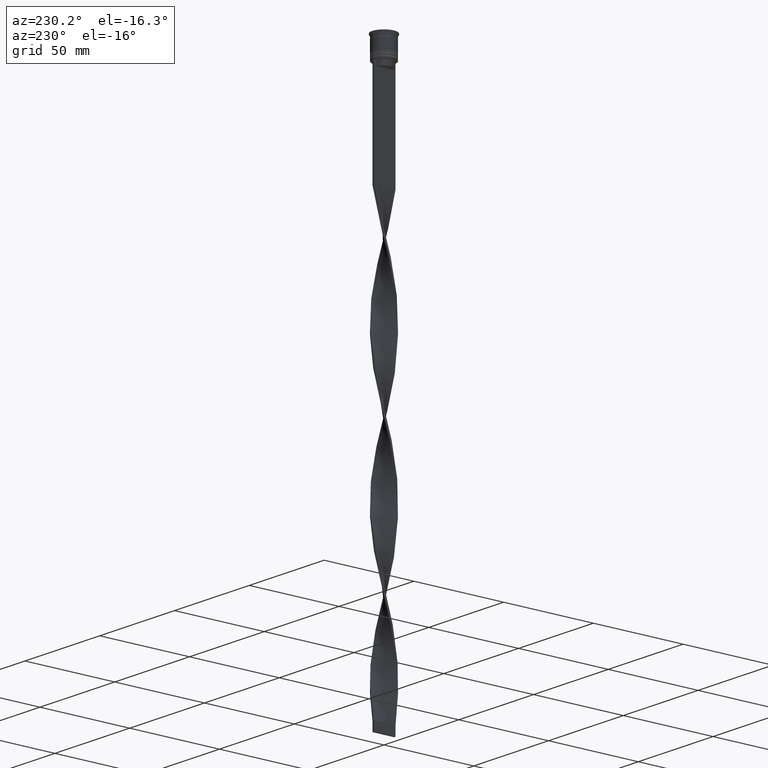
[diagram: clean part render]
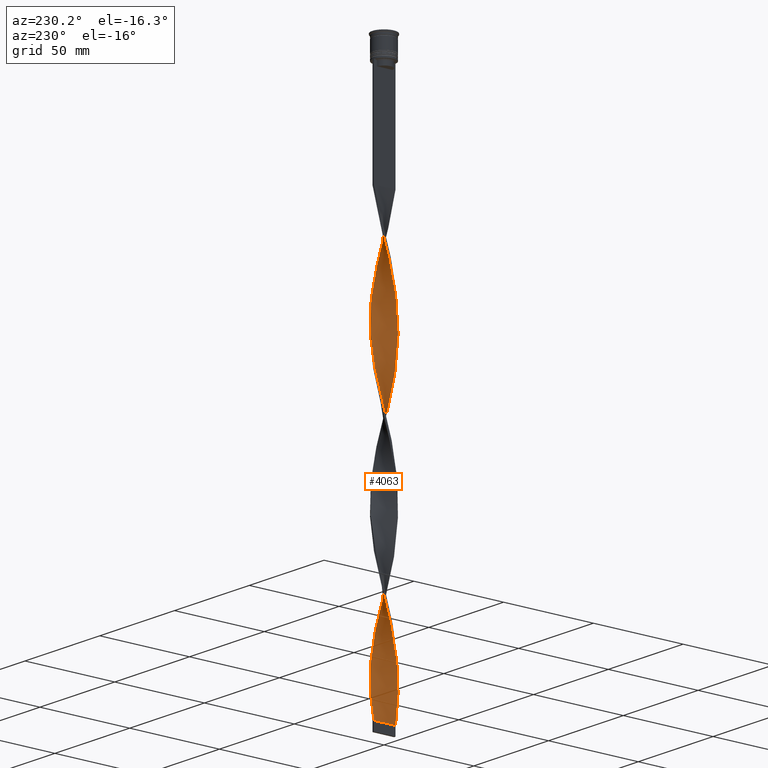
[diagram: same view with one face highlighted and labeled with its STEP entity id]
A machine part, auxiliary view. The second image highlights one B-rep face of the part: STEP entity #4063.
In plain terms, the highlighted face is a freeform B-spline surface patch.
Its self-contained STEP definition (entity closure, byte-faithful):
#4 = CARTESIAN_POINT ( 'NONE',  ( -4.596194077712557835, 3.889087296526011706, -168.0833333333333712 ) ) ;
#10 = CARTESIAN_POINT ( 'NONE',  ( -0.9173149989399220772, 5.969343698769575823, -74.47500000000002274 ) ) ;
#11 = CARTESIAN_POINT ( 'NONE',  ( -5.147994592395922275, -3.122203016567364653, -283.6000000000000227 ) ) ;
#31 = CARTESIAN_POINT ( 'NONE',  ( -0.4447626199438174388, -6.004347276090940433, -223.8500000000000227 ) ) ;
#37 = CARTESIAN_POINT ( 'NONE',  ( -0.5000000000000000000, 1.999999999999999112, -307.5000000000000000 ) ) ;
#53 = CARTESIAN_POINT ( 'NONE',  ( -6.039350853412309483, -0.02778975905228582913, -186.0083333333333258 ) ) ;
#54 = CARTESIAN_POINT ( 'NONE',  ( 5.752351491147217111, 1.839832417264295694, -197.9583333333333997 ) ) ;
#70 = CARTESIAN_POINT ( 'NONE',  ( -5.960649146587690517, -0.9722102409477125784, -189.9916666666667027 ) ) ;
#71 = CARTESIAN_POINT ( 'NONE',  ( 3.572323752398604224, 4.869603064867705555, -213.8916666666666799 ) ) ;
#87 = CARTESIAN_POINT ( 'NONE',  ( 3.122203016567365097, 5.147994592395919611, -291.5666666666667197 ) ) ;
#94 = CARTESIAN_POINT ( 'NONE',  ( -6.039350853412311260, 0.02778975905228984675, -269.6583333333334167 ) ) ;
#97 = CARTESIAN_POINT ( 'NONE',  ( -2.766568768664327216, -5.368484725653164702, -297.5416666666666856 ) ) ;
#104 = CARTESIAN_POINT ( 'NONE',  ( 0.9173149989399225213, 5.969343698769574935, -301.5250000000000341 ) ) ;
#112 = CARTESIAN_POINT ( 'NONE',  ( -5.368484725653162037, -2.766568768664326772, -197.9583333333333712 ) ) ;
#114 = CARTESIAN_POINT ( 'NONE',  ( 0.9722102409477153540, 5.960649146587693181, -225.8416666666666970 ) ) ;
#118 = CARTESIAN_POINT ( 'NONE',  ( -4.869603064867703779, 3.572323752398605556, -94.39166666666669414 ) ) ;
#130 = CARTESIAN_POINT ( 'NONE',  ( 1.839832417264293252, -5.752351491147218887, -158.1250000000000000 ) ) ;
#134 = CARTESIAN_POINT ( 'NONE',  ( -3.527358977712831134, 4.902271885939099683, -86.42499999999999716 ) ) ;
#151 = CARTESIAN_POINT ( 'NONE',  ( 3.931220010942312104, -4.560209340103447140, -84.43333333333333712 ) ) ;
#157 = CARTESIAN_POINT ( 'NONE',  ( -5.847912811050711923, 1.432450960538954821, -104.3499999999999943 ) ) ;
#170 = CARTESIAN_POINT ( 'NONE',  ( -2.766568768664324995, 5.368484725653163814, -158.1250000000000000 ) ) ;
#186 = CARTESIAN_POINT ( 'NONE',  ( 1.432450960538954154, -5.847912811050710147, -72.48333333333334849 ) ) ;
#192 = CARTESIAN_POINT ( 'NONE',  ( 0.5000000000000002220, 6.000000000000000888, -68.50000000000000000 ) ) ;
#210 = CARTESIAN_POINT ( 'NONE',  ( 1.378573708102107886, 5.860847594958394247, -140.1999999999999886 ) ) ;
#212 = CARTESIAN_POINT ( 'NONE',  ( 5.752351491147216223, -1.839832417264293918, -98.37500000000002842 ) ) ;
#217 = CARTESIAN_POINT ( 'NONE',  ( 3.122203016567364653, -5.147994592395922275, -164.1000000000000227 ) ) ;
#233 = CARTESIAN_POINT ( 'NONE',  ( 1.839832417264293918, 5.752351491147216223, -138.2083333333333144 ) ) ;
#234 = CARTESIAN_POINT ( 'NONE',  ( 0.5000000000000002220, -5.999999999999999112, -68.50000000000000000 ) ) ;
#239 = CARTESIAN_POINT ( 'NONE',  ( 3.931220010942312104, -4.560209340103447140, -84.43333333333333712 ) ) ;
#241 = CARTESIAN_POINT ( 'NONE',  ( -2.717047055421899948, 5.393717298852747533, -241.7750000000000341 ) ) ;
#242 = CARTESIAN_POINT ( 'NONE',  ( 3.572323752398604224, -4.869603064867703779, -241.7750000000000341 ) ) ;
#255 = CARTESIAN_POINT ( 'NONE',  ( 4.902271885939097906, -3.527358977712830246, -249.7416666666666742 ) ) ;
#260 = CARTESIAN_POINT ( 'NONE',  ( 3.931220010942314769, 4.560209340103448028, -211.9000000000000057 ) ) ;
#272 = CARTESIAN_POINT ( 'NONE',  ( 5.119043895260433352, 3.169446260531464610, -279.6166666666666742 ) ) ;
#281 = CARTESIAN_POINT ( 'NONE',  ( 6.004347276090943097, 0.4447626199438150518, -191.9833333333333485 ) ) ;
#298 = CARTESIAN_POINT ( 'NONE',  ( -5.860847594958394247, 1.378573708102108331, -180.0333333333333599 ) ) ;
#304 = CARTESIAN_POINT ( 'NONE',  ( 2.717047055421899060, -5.393717298852747533, -162.1083333333333769 ) ) ;
#305 = CARTESIAN_POINT ( 'NONE',  ( 0.9722102409477109131, -5.960649146587690517, -229.8250000000000171 ) ) ;
#319 = CARTESIAN_POINT ( 'NONE',  ( 5.147994592395920499, -3.122203016567364209, -251.7333333333333769 ) ) ;
#325 = CARTESIAN_POINT ( 'NONE',  ( -4.560209340103448916, 3.931220010942312992, -251.7333333333333769 ) ) ;
#326 = CARTESIAN_POINT ( 'NONE',  ( -4.250815615339191389, -4.290116269486022205, -205.9250000000000114 ) ) ;
#338 = CARTESIAN_POINT ( 'NONE',  ( -2.717047055421898172, -5.393717298852744868, -213.8916666666666799 ) ) ;
#344 = CARTESIAN_POINT ( 'NONE',  ( -4.902271885939099683, -3.527358977712830246, -126.2583333333333258 ) ) ;
#384 = CARTESIAN_POINT ( 'NONE',  ( 3.931220010942314769, 4.560209340103448028, -211.9000000000000057 ) ) ;
#399 = CARTESIAN_POINT ( 'NONE',  ( 5.393717298852747533, 2.717047055421897284, -201.9416666666667197 ) ) ;
#403 = CARTESIAN_POINT ( 'NONE',  ( -0.5000000000000009992, -6.000000000000000888, -307.5000000000000000 ) ) ;
#413 = CARTESIAN_POINT ( 'NONE',  ( 2.278439736343096822, 5.573034394999980101, -295.5499999999999545 ) ) ;
#426 = CARTESIAN_POINT ( 'NONE',  ( 6.039350853412311260, -0.02778975905228783447, -189.9916666666667027 ) ) ;
#445 = CARTESIAN_POINT ( 'NONE',  ( -5.368484725653164702, 2.766568768664326772, -257.7083333333333144 ) ) ;
#463 = CARTESIAN_POINT ( 'NONE',  ( 5.368484725653162926, -2.766568768664329436, -178.0416666666667140 ) ) ;
#466 = CARTESIAN_POINT ( 'NONE',  ( 2.329630224397261085, -5.551830600583446795, -76.46666666666666856 ) ) ;
#467 = CARTESIAN_POINT ( 'NONE',  ( -0.4447626199438162731, 6.004347276090943097, -72.48333333333334849 ) ) ;
#481 = CARTESIAN_POINT ( 'NONE',  ( 0.5000000000000002220, -5.999999999999999112, -68.50000000000000000 ) ) ;
#486 = CARTESIAN_POINT ( 'NONE',  ( 4.869603064867703779, 3.572323752398604224, -122.2750000000000341 ) ) ;
#493 = CARTESIAN_POINT ( 'NONE',  ( -0.9173149989399220772, 5.969343698769576712, -74.47500000000000853 ) ) ;
#506 = CARTESIAN_POINT ( 'NONE',  ( -0.9722102409477118012, -5.960649146587693181, -305.5083333333334963 ) ) ;
#510 = CARTESIAN_POINT ( 'NONE',  ( 5.735176475513731553, 1.892691680130197396, -273.6416666666666515 ) ) ;
#516 = VERTEX_POINT ( 'NONE', #481 ) ;
#520 = CARTESIAN_POINT ( 'NONE',  ( 4.290116269486021316, -4.250815615339192277, -86.42499999999999716 ) ) ;
#526 = CARTESIAN_POINT ( 'NONE',  ( -1.378573708102107664, 5.860847594958396023, -235.8000000000000114 ) ) ;
#542 = CARTESIAN_POINT ( 'NONE',  ( -3.572323752398603780, 4.869603064867703779, -162.1083333333333769 ) ) ;
#544 = CARTESIAN_POINT ( 'NONE',  ( -0.4999999999999994449, 5.999999999999999112, -148.1666666666666572 ) ) ;
#552 = CARTESIAN_POINT ( 'NONE',  ( -1.839832417264293918, 5.752351491147217999, -237.7916666666667140 ) ) ;
#553 = CARTESIAN_POINT ( 'NONE',  ( 3.169446260531464610, -5.119043895260433352, -239.7833333333333599 ) ) ;
#569 = CARTESIAN_POINT ( 'NONE',  ( -5.393717298852745756, 2.717047055421897728, -174.0583333333333371 ) ) ;
#573 = CARTESIAN_POINT ( 'NONE',  ( 2.717047055421899948, 5.393717298852744868, -293.5583333333333940 ) ) ;
#574 = CARTESIAN_POINT ( 'NONE',  ( 5.119043895260433352, 3.169446260531464610, -120.2833333333333456 ) ) ;
#575 = CARTESIAN_POINT ( 'NONE',  ( -3.169446260531465498, -5.119043895260433352, -136.2166666666666686 ) ) ;
#588 = CARTESIAN_POINT ( 'NONE',  ( 6.004347276090941321, -0.4447626199438162731, -263.6833333333333940 ) ) ;
#592 = LINE ( 'NONE', #831, #879 ) ;
#594 = CARTESIAN_POINT ( 'NONE',  ( -2.766568768664327216, -5.368484725653164702, -138.2083333333333144 ) ) ;
#610 = CARTESIAN_POINT ( 'NONE',  ( -1.839832417264297026, -5.752351491147214446, -217.8750000000000568 ) ) ;
#619 = CARTESIAN_POINT ( 'NONE',  ( 5.969343698769576712, 0.9173149989399183024, -193.9750000000000227 ) ) ;
#632 = CARTESIAN_POINT ( 'NONE',  ( 2.329630224397261085, -5.551830600583446795, -235.8000000000000114 ) ) ;
#637 = CARTESIAN_POINT ( 'NONE',  ( -5.368484725653164702, 2.766568768664326772, -98.37500000000002842 ) ) ;
#652 = CARTESIAN_POINT ( 'NONE',  ( 6.039350853412309483, 0.02778975905228925000, -265.6750000000000682 ) ) ;
#657 = CARTESIAN_POINT ( 'NONE',  ( -5.969343698769576712, -0.9173149989399216331, -273.6416666666666515 ) ) ;
#672 = CARTESIAN_POINT ( 'NONE',  ( 0.4447626199438167727, 6.004347276090940433, -303.5166666666666515 ) ) ;
#678 = CARTESIAN_POINT ( 'NONE',  ( -1.432450960538955043, -5.847912811050711035, -303.5166666666666515 ) ) ;
#698 = CARTESIAN_POINT ( 'NONE',  ( 1.432450960538955709, 5.847912811050711035, -223.8500000000000227 ) ) ;
#703 = CARTESIAN_POINT ( 'NONE',  ( 1.378573708102107886, 5.860847594958394247, -299.5333333333333030 ) ) ;
#705 = VERTEX_POINT ( 'NONE', #1552 ) ;
#713 = CARTESIAN_POINT ( 'NONE',  ( 1.892691680130196952, 5.735176475513733330, -221.8583333333333769 ) ) ;
#716 = ORIENTED_EDGE ( 'NONE', *, *, #2639, .F. ) ;
#721 = CARTESIAN_POINT ( 'NONE',  ( 3.527358977712831134, 4.902271885939097906, -289.5750000000000455 ) ) ;
#729 = CARTESIAN_POINT ( 'NONE',  ( 4.902271885939098794, 3.527358977712832910, -205.9250000000000114 ) ) ;
#746 = CARTESIAN_POINT ( 'NONE',  ( 2.717047055421899948, 5.393717298852743980, -293.5583333333334508 ) ) ;
#751 = CARTESIAN_POINT ( 'NONE',  ( 3.169446260531466386, 5.119043895260433352, -215.8833333333333542 ) ) ;
#756 = CARTESIAN_POINT ( 'NONE',  ( -5.735176475513733330, 1.892691680130198728, -102.3583333333333485 ) ) ;
#768 = CARTESIAN_POINT ( 'NONE',  ( -0.9173149989399220772, 5.969343698769575823, -233.8083333333333371 ) ) ;
#783 = CARTESIAN_POINT ( 'NONE',  ( -1.892691680130197174, 5.735176475513731553, -154.1416666666666799 ) ) ;
#808 = CARTESIAN_POINT ( 'NONE',  ( -3.572323752398605556, -4.869603064867704667, -293.5583333333334508 ) ) ;
#813 = CARTESIAN_POINT ( 'NONE',  ( -2.278439736343096378, 5.573034394999981878, -80.45000000000000284 ) ) ;
#829 = CARTESIAN_POINT ( 'NONE',  ( -5.147994592395922275, -3.122203016567364653, -283.6000000000000227 ) ) ;
#831 = CARTESIAN_POINT ( 'NONE',  ( 0.5000000000000002220, -6.000000000000000000, -68.50000000000000000 ) ) ;
#834 = CARTESIAN_POINT ( 'NONE',  ( 4.596194077712558723, -3.889087296526011261, -88.41666666666667140 ) ) ;
#836 = CARTESIAN_POINT ( 'NONE',  ( -1.839832417264293918, 5.752351491147217999, -78.45833333333334281 ) ) ;
#849 = CARTESIAN_POINT ( 'NONE',  ( 1.378573708102107886, 5.860847594958394247, -140.1999999999999886 ) ) ;
#855 = CARTESIAN_POINT ( 'NONE',  ( 4.290116269486023981, 4.250815615339191389, -209.9083333333333599 ) ) ;
#856 = CARTESIAN_POINT ( 'NONE',  ( 6.039350853412309483, 0.02778975905228925000, -265.6750000000000682 ) ) ;
#873 = CARTESIAN_POINT ( 'NONE',  ( -4.290116269486023093, -4.250815615339194053, -289.5750000000000455 ) ) ;
#879 = VECTOR ( 'NONE', #3054, 1000.000000000000000 ) ;
#880 = CARTESIAN_POINT ( 'NONE',  ( 5.860847594958394247, -1.378573708102107664, -100.3666666666666742 ) ) ;
#882 = CARTESIAN_POINT ( 'NONE',  ( -3.122203016567365541, 5.147994592395922275, -243.7666666666666799 ) ) ;
#896 = CARTESIAN_POINT ( 'NONE',  ( -6.039350853412309483, -0.02778975905228582913, -186.0083333333333258 ) ) ;
#900 = CARTESIAN_POINT ( 'NONE',  ( -5.969343698769575823, -0.9173149989399215221, -114.3083333333333655 ) ) ;
#901 = CARTESIAN_POINT ( 'NONE',  ( 3.527358977712829802, -4.902271885939099683, -166.0916666666666970 ) ) ;
#902 = CARTESIAN_POINT ( 'NONE',  ( 5.960649146587690517, 0.9722102409477104690, -269.6583333333334167 ) ) ;
#916 = CARTESIAN_POINT ( 'NONE',  ( -5.573034394999980101, 2.278439736343096822, -176.0500000000000114 ) ) ;
#920 = CARTESIAN_POINT ( 'NONE',  ( -2.278439736343096378, 5.573034394999981878, -80.45000000000000284 ) ) ;
#921 = CARTESIAN_POINT ( 'NONE',  ( 4.869603064867704667, -3.572323752398603780, -174.0583333333333371 ) ) ;
#936 = CARTESIAN_POINT ( 'NONE',  ( -1.378573708102108997, -5.860847594958394247, -219.8666666666666742 ) ) ;
#942 = FACE_OUTER_BOUND ( 'NONE', #1286, .T. ) ;
#944 = CARTESIAN_POINT ( 'NONE',  ( 3.572323752398604224, 4.869603064867704667, -213.8916666666666799 ) ) ;
#945 = CARTESIAN_POINT ( 'NONE',  ( 5.147994592395920499, -3.122203016567364209, -251.7333333333333769 ) ) ;
#947 = ORIENTED_EDGE ( 'NONE', *, *, #2539, .F. ) ;
#956 =( BOUNDED_CURVE ( )  B_SPLINE_CURVE ( 2, ( #192, #1429, #467, #493, #3373, #836, #813, #1689, #1706, #134, #3978, #2392, #2717, #118, #1373, #3308, #1728, #756, #157, #2975, #2670, #3964, #3946, #2357, #1412, #1104, #2123, #3080, #1851, #1214, #1875, #2170, #2479, #3731, #575, #594, #2150, #3150, #1493, #3418, #1786, #1810, #3395, #4064, #2781, #3754, #3057, #304, #217, #901, #3438, #1514, #2828, #921, #1560, #4042, #3122, #4020, #2740, #3103, #4103, #1167, #281, #619, #3794, #2455, #1541, #4083, #2434, #2809, #1230, #855, #260, #944, #1253, #3707, #2521, #2499, #2216, #1472, #3773, #2189, #1188, #3461, #526, #552, #1830, #241, #882, #2761, #2586, #1960, #325, #3213, #3523, #1581, #2936, #2274, #985, #1893, #3487, #3232, #3821, #657, #2911, #3901, #2846, #1296, #11, #1001, #2608, #1606, #2255, #1354, #2292, #97, #3248, #2628, #678, #3855, #2892 ),
 .UNSPECIFIED., .F., .T. ) 
 B_SPLINE_CURVE_WITH_KNOTS ( ( 3, 2, 2, 2, 2, 2, 2, 2, 2, 2, 2, 2, 2, 2, 2, 2, 2, 2, 2, 2, 2, 2, 2, 2, 2, 2, 2, 2, 2, 2, 2, 2, 2, 2, 2, 2, 2, 2, 2, 2, 2, 2, 2, 2, 2, 2, 2, 2, 2, 2, 2, 2, 2, 2, 2, 2, 2, 2, 2, 2, 3 ),
 ( 0.000000000000000000, 0.01250000000000000243, 0.02500000000000000486, 0.03749999999999999861, 0.05000000000000000971, 0.06250000000000000000, 0.07499999999999999722, 0.08749999999999998057, 0.1000000000000000194, 0.1125000000000000028, 0.1250000000000000000, 0.1375000000000000111, 0.1499999999999999944, 0.1625000000000000056, 0.1749999999999999611, 0.1875000000000000000, 0.2000000000000000389, 0.2124999999999999944, 0.2250000000000000056, 0.2374999999999999611, 0.2500000000000000000, 0.2625000000000000111, 0.2750000000000000222, 0.2874999999999999778, 0.2999999999999999889, 0.3125000000000000000, 0.3250000000000000111, 0.3375000000000000777, 0.3499999999999999223, 0.3624999999999999889, 0.3750000000000000000, 0.3875000000000000111, 0.4000000000000000777, 0.4124999999999999223, 0.4249999999999999889, 0.4375000000000000000, 0.4500000000000000111, 0.4625000000000000777, 0.4749999999999999223, 0.4874999999999999889, 0.5000000000000000000, 0.5124999999999999556, 0.5250000000000000222, 0.5374999999999999778, 0.5500000000000000444, 0.5625000000000000000, 0.5749999999999999556, 0.5875000000000000222, 0.5999999999999999778, 0.6125000000000000444, 0.6250000000000000000, 0.6374999999999999556, 0.6500000000000000222, 0.6624999999999999778, 0.6750000000000001554, 0.6875000000000000000, 0.6999999999999998446, 0.7125000000000000222, 0.7249999999999999778, 0.7375000000000001554, 0.7500000000000000000 ),
 .UNSPECIFIED. ) 
 CURVE ( )  GEOMETRIC_REPRESENTATION_ITEM ( )  RATIONAL_B_SPLINE_CURVE ( ( 1.000000000000000000, 0.9969173337331279638, 1.000000000000000000, 0.9969173337331279638, 1.000000000000000000, 0.9969173337331279638, 1.000000000000000000, 0.9969173337331279638, 1.000000000000000000, 0.9969173337331279638, 1.000000000000000000, 0.9969173337331279638, 1.000000000000000000, 0.9969173337331279638, 1.000000000000000000, 0.9969173337331279638, 1.000000000000000000, 0.9969173337331279638, 1.000000000000000000, 0.9969173337331279638, 1.000000000000000000, 0.9969173337331279638, 1.000000000000000000, 0.9969173337331279638, 1.000000000000000000, 0.9969173337331279638, 1.000000000000000000, 0.9969173337331279638, 1.000000000000000000, 0.9969173337331279638, 1.000000000000000000, 0.9969173337331279638, 1.000000000000000000, 0.9969173337331279638, 1.000000000000000000, 0.9969173337331279638, 1.000000000000000000, 0.9969173337331279638, 1.000000000000000000, 0.9969173337331279638, 1.000000000000000000, 0.9969173337331279638, 1.000000000000000000, 0.9969173337331279638, 1.000000000000000000, 0.9969173337331279638, 1.000000000000000000, 0.9969173337331279638, 1.000000000000000000, 0.9969173337331279638, 1.000000000000000000, 0.9969173337331279638, 1.000000000000000000, 0.9969173337331279638, 1.000000000000000000, 0.9969173337331279638, 1.000000000000000000, 0.9969173337331279638, 1.000000000000000000, 0.9969173337331279638, 1.000000000000000000, 0.9969173337331279638, 1.000000000000000000, 0.9969173337331279638, 1.000000000000000000, 0.9969173337331279638, 1.000000000000000000, 0.9969173337331279638, 1.000000000000000000, 0.9969173337331279638, 1.000000000000000000, 0.9969173337331279638, 1.000000000000000000, 0.9969173337331279638, 1.000000000000000000, 0.9969173337331279638, 1.000000000000000000, 0.9969173337331279638, 1.000000000000000000, 0.9969173337331279638, 1.000000000000000000, 0.9969173337331279638, 1.000000000000000000, 0.9969173337331279638, 1.000000000000000000, 0.9969173337331279638, 1.000000000000000000, 0.9969173337331279638, 1.000000000000000000, 0.9969173337331279638, 1.000000000000000000, 0.9969173337331279638, 1.000000000000000000, 0.9969173337331279638, 1.000000000000000000, 0.9969173337331279638, 1.000000000000000000, 0.9969173337331279638, 1.000000000000000000, 0.9969173337331279638, 1.000000000000000000, 0.9969173337331279638, 1.000000000000000000, 0.9969173337331279638, 1.000000000000000000, 0.9969173337331279638, 1.000000000000000000, 0.9969173337331279638, 1.000000000000000000, 0.9969173337331279638, 1.000000000000000000, 0.9969173337331279638, 1.000000000000000000, 0.9969173337331279638, 1.000000000000000000, 0.9969173337331279638, 1.000000000000000000, 0.9969173337331279638, 1.000000000000000000, 0.9969173337331279638, 1.000000000000000000 ) ) 
 REPRESENTATION_ITEM ( '' )  );
#962 = CARTESIAN_POINT ( 'NONE',  ( 5.960649146587691405, 0.9722102409477105800, -269.6583333333334167 ) ) ;
#967 = CARTESIAN_POINT ( 'NONE',  ( -6.004347276090943097, -0.4447626199438159400, -112.3166666666666771 ) ) ;
#981 = CARTESIAN_POINT ( 'NONE',  ( -5.847912811050710147, -1.432450960538953044, -191.9833333333333485 ) ) ;
#984 = CARTESIAN_POINT ( 'NONE',  ( -4.869603064867704667, 3.572323752398605556, -94.39166666666669414 ) ) ;
#985 = CARTESIAN_POINT ( 'NONE',  ( -5.847912811050711923, 1.432450960538954821, -263.6833333333333940 ) ) ;
#1000 = CARTESIAN_POINT ( 'NONE',  ( 6.000000000000000888, -0.5000000000000013323, -188.0000000000000000 ) ) ;
#1001 = CARTESIAN_POINT ( 'NONE',  ( -4.902271885939099683, -3.527358977712830246, -285.5916666666666970 ) ) ;
#1022 = CARTESIAN_POINT ( 'NONE',  ( 6.004347276090943097, 0.4447626199438150518, -191.9833333333333485 ) ) ;
#1034 = CARTESIAN_POINT ( 'NONE',  ( 2.278439736343096822, 5.573034394999980101, -295.5499999999999545 ) ) ;
#1041 = CARTESIAN_POINT ( 'NONE',  ( 2.278439736343095934, -5.573034394999981878, -160.1166666666666742 ) ) ;
#1058 = CARTESIAN_POINT ( 'NONE',  ( -4.560209340103448916, 3.931220010942312992, -251.7333333333333769 ) ) ;
#1082 = CARTESIAN_POINT ( 'NONE',  ( 0.9173149989399214110, -5.969343698769575823, -154.1416666666666799 ) ) ;
#1090 = ORIENTED_EDGE ( 'NONE', *, *, #2101, .T. ) ;
#1100 = CARTESIAN_POINT ( 'NONE',  ( 3.527358977712831134, 4.902271885939097906, -130.2416666666667027 ) ) ;
#1104 = CARTESIAN_POINT ( 'NONE',  ( -5.752351491147217999, -1.839832417264293918, -118.2916666666666998 ) ) ;
#1116 = CARTESIAN_POINT ( 'NONE',  ( -5.147994592395919611, 3.122203016567365097, -172.0666666666666629 ) ) ;
#1118 = CARTESIAN_POINT ( 'NONE',  ( 5.969343698769574047, -0.9173149989399220772, -102.3583333333333343 ) ) ;
#1140 = CARTESIAN_POINT ( 'NONE',  ( 5.847912811050710147, 1.432450960538953932, -112.3166666666666771 ) ) ;
#1163 = CARTESIAN_POINT ( 'NONE',  ( 5.735176475513731553, 1.892691680130197396, -114.3083333333333655 ) ) ;
#1167 = CARTESIAN_POINT ( 'NONE',  ( 6.039350853412312148, -0.02778975905228783447, -189.9916666666667027 ) ) ;
#1181 = CARTESIAN_POINT ( 'NONE',  ( -5.860847594958396911, -1.378573708102107220, -275.6333333333333258 ) ) ;
#1186 = CARTESIAN_POINT ( 'NONE',  ( 3.527358977712831134, 4.902271885939097906, -289.5750000000000455 ) ) ;
#1187 = CARTESIAN_POINT ( 'NONE',  ( 5.752351491147216223, -1.839832417264293918, -98.37500000000001421 ) ) ;
#1188 = CARTESIAN_POINT ( 'NONE',  ( -0.4447626199438162731, 6.004347276090943097, -231.8166666666666629 ) ) ;
#1190 = CARTESIAN_POINT ( 'NONE',  ( 5.573034394999979213, -2.278439736343095934, -255.7166666666666970 ) ) ;
#1206 = CARTESIAN_POINT ( 'NONE',  ( 0.5000000000000002220, -5.999999999999999112, -227.8333333333333428 ) ) ;
#1212 = CARTESIAN_POINT ( 'NONE',  ( -3.122203016567365541, 5.147994592395922275, -84.43333333333333712 ) ) ;
#1214 = CARTESIAN_POINT ( 'NONE',  ( -4.902271885939099683, -3.527358977712830246, -126.2583333333333400 ) ) ;
#1225 = CARTESIAN_POINT ( 'NONE',  ( 1.892691680130197840, -5.735176475513731553, -233.8083333333333371 ) ) ;
#1229 = CARTESIAN_POINT ( 'NONE',  ( -1.432450960538955043, -5.847912811050711035, -144.1833333333333371 ) ) ;
#1230 = CARTESIAN_POINT ( 'NONE',  ( 4.596194077712559611, 3.889087296526010817, -207.9166666666666572 ) ) ;
#1246 = CARTESIAN_POINT ( 'NONE',  ( -4.902271885939096130, 3.527358977712832910, -170.0750000000000455 ) ) ;
#1251 = CARTESIAN_POINT ( 'NONE',  ( -5.119043895260434240, 3.169446260531465498, -96.38333333333335418 ) ) ;
#1252 = CARTESIAN_POINT ( 'NONE',  ( 5.960649146587690517, 0.9722102409477104690, -110.3250000000000171 ) ) ;
#1253 = CARTESIAN_POINT ( 'NONE',  ( 3.169446260531466386, 5.119043895260433352, -215.8833333333333542 ) ) ;
#1254 = CARTESIAN_POINT ( 'NONE',  ( 2.329630224397261085, -5.551830600583446795, -235.8000000000000114 ) ) ;
#1267 = CARTESIAN_POINT ( 'NONE',  ( -5.960649146587691405, -0.9722102409477125784, -189.9916666666667027 ) ) ;
#1272 = CARTESIAN_POINT ( 'NONE',  ( -5.960649146587693181, 0.9722102409477114682, -106.3416666666666686 ) ) ;
#1275 = CARTESIAN_POINT ( 'NONE',  ( 5.752351491147216223, -1.839832417264293918, -257.7083333333333144 ) ) ;
#1286 = EDGE_LOOP ( 'NONE', ( #3105, #1090, #716, #947 ) ) ;
#1290 = CARTESIAN_POINT ( 'NONE',  ( -3.122203016567365541, -5.147994592395919611, -211.9000000000000057 ) ) ;
#1296 = CARTESIAN_POINT ( 'NONE',  ( -5.393717298852747533, -2.717047055421899948, -281.6083333333334053 ) ) ;
#1310 = CARTESIAN_POINT ( 'NONE',  ( 5.573034394999981878, 2.278439736343095934, -199.9500000000000171 ) ) ;
#1328 = CARTESIAN_POINT ( 'NONE',  ( -5.847912811050711923, 1.432450960538954821, -263.6833333333333940 ) ) ;
#1340 = CARTESIAN_POINT ( 'NONE',  ( 0.4447626199438167727, 6.004347276090940433, -303.5166666666666515 ) ) ;
#1352 = CARTESIAN_POINT ( 'NONE',  ( -6.004347276090943097, -0.4447626199438159400, -271.6499999999999773 ) ) ;
#1354 = CARTESIAN_POINT ( 'NONE',  ( -3.572323752398605556, -4.869603064867703779, -293.5583333333333940 ) ) ;
#1369 = CARTESIAN_POINT ( 'NONE',  ( 4.290116269486023981, 4.250815615339191389, -209.9083333333333883 ) ) ;
#1373 = CARTESIAN_POINT ( 'NONE',  ( -5.119043895260434240, 3.169446260531465498, -96.38333333333335418 ) ) ;
#1387 = CARTESIAN_POINT ( 'NONE',  ( 2.717047055421899060, -5.393717298852746644, -162.1083333333333769 ) ) ;
#1407 = CARTESIAN_POINT ( 'NONE',  ( 4.596194077712558723, -3.889087296526011261, -88.41666666666667140 ) ) ;
#1411 = CARTESIAN_POINT ( 'NONE',  ( 2.766568768664325884, -5.368484725653162926, -78.45833333333334281 ) ) ;
#1412 = CARTESIAN_POINT ( 'NONE',  ( -5.860847594958396911, -1.378573708102107220, -116.3000000000000114 ) ) ;
#1423 = CARTESIAN_POINT ( 'NONE',  ( 1.892691680130197840, -5.735176475513731553, -74.47500000000002274 ) ) ;
#1429 = CARTESIAN_POINT ( 'NONE',  ( 0.02778975905228940960, 6.039350853412312148, -70.49166666666668846 ) ) ;
#1444 = CARTESIAN_POINT ( 'NONE',  ( 2.329630224397261085, -5.551830600583446795, -76.46666666666666856 ) ) ;
#1466 = CARTESIAN_POINT ( 'NONE',  ( -1.432450960538953488, 5.847912811050710147, -152.1500000000000057 ) ) ;
#1467 = CARTESIAN_POINT ( 'NONE',  ( 5.368484725653162926, 2.766568768664325439, -118.2916666666666998 ) ) ;
#1472 = CARTESIAN_POINT ( 'NONE',  ( 0.9722102409477152429, 5.960649146587692293, -225.8416666666666970 ) ) ;
#1488 = CARTESIAN_POINT ( 'NONE',  ( 6.039350853412309483, 0.02778975905228925000, -106.3416666666666686 ) ) ;
#1492 = CARTESIAN_POINT ( 'NONE',  ( 4.290116269486021316, -4.250815615339192277, -86.42499999999999716 ) ) ;
#1493 = CARTESIAN_POINT ( 'NONE',  ( -1.432450960538955043, -5.847912811050711035, -144.1833333333333371 ) ) ;
#1494 = CARTESIAN_POINT ( 'NONE',  ( 4.902271885939097906, -3.527358977712830246, -249.7416666666667027 ) ) ;
#1508 = CARTESIAN_POINT ( 'NONE',  ( -5.735176475513732441, -1.892691680130194065, -193.9749999999999943 ) ) ;
#1512 = CARTESIAN_POINT ( 'NONE',  ( 4.869603064867703779, 3.572323752398604224, -281.6083333333334053 ) ) ;
#1514 = CARTESIAN_POINT ( 'NONE',  ( 4.250815615339191389, -4.290116269486023981, -170.0750000000000455 ) ) ;
#1515 = CARTESIAN_POINT ( 'NONE',  ( 0.5000000000000002220, -5.999999999999999112, -227.8333333333333428 ) ) ;
#1529 = CARTESIAN_POINT ( 'NONE',  ( -0.4999999999999994449, 5.999999999999999112, -148.1666666666666572 ) ) ;
#1532 = CARTESIAN_POINT ( 'NONE',  ( 0.9722102409477109131, -5.960649146587691405, -229.8250000000000455 ) ) ;
#1538 = CARTESIAN_POINT ( 'NONE',  ( -3.572323752398605556, -4.869603064867704667, -134.2249999999999943 ) ) ;
#1541 = CARTESIAN_POINT ( 'NONE',  ( 5.573034394999981878, 2.278439736343095934, -199.9500000000000171 ) ) ;
#1552 = CARTESIAN_POINT ( 'NONE',  ( -0.5000000000000009992, -6.000000000000000888, -307.5000000000000000 ) ) ;
#1554 = CARTESIAN_POINT ( 'NONE',  ( 2.766568768664325884, -5.368484725653162926, -237.7916666666667140 ) ) ;
#1559 = CARTESIAN_POINT ( 'NONE',  ( -1.378573708102107664, 5.860847594958396023, -76.46666666666666856 ) ) ;
#1560 = CARTESIAN_POINT ( 'NONE',  ( 5.119043895260433352, -3.169446260531466386, -176.0500000000000114 ) ) ;
#1575 = CARTESIAN_POINT ( 'NONE',  ( 5.573034394999979213, -2.278439736343095934, -255.7166666666666970 ) ) ;
#1579 = CARTESIAN_POINT ( 'NONE',  ( -5.735176475513733330, 1.892691680130198728, -102.3583333333333343 ) ) ;
#1580 = CARTESIAN_POINT ( 'NONE',  ( 5.735176475513731553, 1.892691680130197396, -114.3083333333333655 ) ) ;
#1581 = CARTESIAN_POINT ( 'NONE',  ( -5.368484725653164702, 2.766568768664326772, -257.7083333333333144 ) ) ;
#1582 = CARTESIAN_POINT ( 'NONE',  ( -3.527358977712832910, -4.902271885939095242, -209.9083333333333599 ) ) ;
#1598 = CARTESIAN_POINT ( 'NONE',  ( 4.250815615339192277, 4.290116269486020428, -285.5916666666666401 ) ) ;
#1606 = CARTESIAN_POINT ( 'NONE',  ( -4.290116269486023093, -4.250815615339194053, -289.5750000000000455 ) ) ;
#1622 = CARTESIAN_POINT ( 'NONE',  ( 1.839832417264293918, 5.752351491147216223, -297.5416666666666856 ) ) ;
#1627 = CARTESIAN_POINT ( 'NONE',  ( -3.169446260531465498, -5.119043895260433352, -136.2166666666666686 ) ) ;
#1644 = CARTESIAN_POINT ( 'NONE',  ( 4.560209340103448028, -3.931220010942313881, -172.0666666666666629 ) ) ;
#1647 = CARTESIAN_POINT ( 'NONE',  ( 5.847912811050710147, 1.432450960538953932, -271.6499999999999773 ) ) ;
#1662 = CARTESIAN_POINT ( 'NONE',  ( -0.4447626199438162731, 6.004347276090943097, -231.8166666666666629 ) ) ;
#1686 = CARTESIAN_POINT ( 'NONE',  ( 5.119043895260433352, -3.169446260531466386, -176.0500000000000114 ) ) ;
#1689 = CARTESIAN_POINT ( 'NONE',  ( -2.717047055421899948, 5.393717298852747533, -82.44166666666667709 ) ) ;
#1700 = CARTESIAN_POINT ( 'NONE',  ( 0.9173149989399225213, 5.969343698769574047, -301.5250000000000341 ) ) ;
#1703 = CARTESIAN_POINT ( 'NONE',  ( -1.378573708102107664, 5.860847594958396023, -235.8000000000000114 ) ) ;
#1706 = CARTESIAN_POINT ( 'NONE',  ( -3.122203016567365541, 5.147994592395922275, -84.43333333333333712 ) ) ;
#1721 = CARTESIAN_POINT ( 'NONE',  ( 2.278439736343096822, 5.573034394999980101, -136.2166666666666686 ) ) ;
#1726 = CARTESIAN_POINT ( 'NONE',  ( 5.969343698769574935, -0.9173149989399220772, -102.3583333333333485 ) ) ;
#1728 = CARTESIAN_POINT ( 'NONE',  ( -5.551830600583448572, 2.329630224397261973, -100.3666666666666742 ) ) ;
#1745 = CARTESIAN_POINT ( 'NONE',  ( -5.551830600583447684, -2.329630224397259752, -195.9666666666666686 ) ) ;
#1747 = CARTESIAN_POINT ( 'NONE',  ( -0.02778975905228881632, 6.039350853412309483, -146.1749999999999829 ) ) ;
#1764 = CARTESIAN_POINT ( 'NONE',  ( 2.717047055421899948, 5.393717298852744868, -134.2250000000000227 ) ) ;
#1765 = CARTESIAN_POINT ( 'NONE',  ( -4.596194077712559611, -3.889087296526011706, -287.5833333333333712 ) ) ;
#1781 = CARTESIAN_POINT ( 'NONE',  ( -2.766568768664327216, -5.368484725653164702, -297.5416666666666856 ) ) ;
#1785 = CARTESIAN_POINT ( 'NONE',  ( 5.393717298852744868, -2.717047055421899948, -94.39166666666669414 ) ) ;
#1786 = CARTESIAN_POINT ( 'NONE',  ( -0.5000000000000009992, -6.000000000000000888, -148.1666666666666572 ) ) ;
#1801 = CARTESIAN_POINT ( 'NONE',  ( -4.290116269486020428, 4.250815615339193165, -166.0916666666666970 ) ) ;
#1804 = CARTESIAN_POINT ( 'NONE',  ( -0.9722102409477103580, 5.960649146587691405, -150.1583333333333599 ) ) ;
#1810 = CARTESIAN_POINT ( 'NONE',  ( -0.02778975905229016594, -6.039350853412312148, -150.1583333333333599 ) ) ;
#1811 = CARTESIAN_POINT ( 'NONE',  ( 1.892691680130197840, -5.735176475513731553, -233.8083333333333371 ) ) ;
#1824 = CARTESIAN_POINT ( 'NONE',  ( -4.902271885939096130, 3.527358977712832910, -170.0750000000000455 ) ) ;
#1825 = CARTESIAN_POINT ( 'NONE',  ( -5.147994592395919611, 3.122203016567365097, -172.0666666666666629 ) ) ;
#1830 = CARTESIAN_POINT ( 'NONE',  ( -2.278439736343096378, 5.573034394999981878, -239.7833333333333599 ) ) ;
#1831 = CARTESIAN_POINT ( 'NONE',  ( -0.4447626199438174388, -6.004347276090940433, -223.8500000000000227 ) ) ;
#1844 = CARTESIAN_POINT ( 'NONE',  ( 4.560209340103447140, 3.931220010942311216, -124.2666666666666799 ) ) ;
#1846 = CARTESIAN_POINT ( 'NONE',  ( -5.999999999999999112, -0.4999999999999991673, -188.0000000000000000 ) ) ;
#1850 = CARTESIAN_POINT ( 'NONE',  ( -5.752351491147217999, -1.839832417264293918, -118.2916666666666998 ) ) ;
#1851 = CARTESIAN_POINT ( 'NONE',  ( -5.147994592395922275, -3.122203016567364653, -124.2666666666666799 ) ) ;
#1852 = CARTESIAN_POINT ( 'NONE',  ( -1.378573708102108997, -5.860847594958394247, -219.8666666666666742 ) ) ;
#1866 = CARTESIAN_POINT ( 'NONE',  ( 5.969343698769574047, -0.9173149989399220772, -261.6916666666666629 ) ) ;
#1874 = CARTESIAN_POINT ( 'NONE',  ( 5.999999999999999112, 0.4999999999999998890, -108.3333333333333428 ) ) ;
#1875 = CARTESIAN_POINT ( 'NONE',  ( -4.596194077712559611, -3.889087296526011706, -128.2500000000000000 ) ) ;
#1888 = CARTESIAN_POINT ( 'NONE',  ( 4.290116269486021316, -4.250815615339192277, -245.7583333333333826 ) ) ;
#1893 = CARTESIAN_POINT ( 'NONE',  ( -5.960649146587692293, 0.9722102409477114682, -265.6750000000000682 ) ) ;
#1894 = CARTESIAN_POINT ( 'NONE',  ( -3.889087296526011706, -4.596194077712557835, -207.9166666666666572 ) ) ;
#1907 = CARTESIAN_POINT ( 'NONE',  ( 4.869603064867703779, 3.572323752398604224, -281.6083333333334622 ) ) ;
#1911 = CARTESIAN_POINT ( 'NONE',  ( -5.573034394999980101, 2.278439736343096822, -176.0500000000000114 ) ) ;
#1912 = CARTESIAN_POINT ( 'NONE',  ( -4.250815615339194053, 4.290116269486022205, -90.40833333333334565 ) ) ;
#1935 = CARTESIAN_POINT ( 'NONE',  ( -5.860847594958394247, 1.378573708102108331, -180.0333333333333599 ) ) ;
#1937 = CARTESIAN_POINT ( 'NONE',  ( -3.931220010942313881, -4.560209340103448028, -132.2333333333333485 ) ) ;
#1954 = CARTESIAN_POINT ( 'NONE',  ( 3.889087296526011261, 4.596194077712557835, -287.5833333333333712 ) ) ;
#1959 = CARTESIAN_POINT ( 'NONE',  ( 5.960649146587693181, -0.9722102409477149099, -186.0083333333333258 ) ) ;
#1960 = CARTESIAN_POINT ( 'NONE',  ( -4.250815615339194053, 4.290116269486022205, -249.7416666666667027 ) ) ;
#1972 = CARTESIAN_POINT ( 'NONE',  ( 1.378573708102107886, 5.860847594958394247, -299.5333333333333030 ) ) ;
#1978 = CARTESIAN_POINT ( 'NONE',  ( -6.000000000000000888, 0.5000000000000005551, -267.6666666666667425 ) ) ;
#1995 = CARTESIAN_POINT ( 'NONE',  ( -5.847912811050710147, -1.432450960538953044, -191.9833333333333485 ) ) ;
#1997 = CARTESIAN_POINT ( 'NONE',  ( 3.889087296526011706, -4.596194077712560500, -168.0833333333333712 ) ) ;
#2022 = CARTESIAN_POINT ( 'NONE',  ( 0.5000000000000002220, 6.000000000000000888, -227.8333333333333428 ) ) ;
#2039 = CARTESIAN_POINT ( 'NONE',  ( -2.717047055421899948, 5.393717298852746644, -241.7750000000000625 ) ) ;
#2058 = CARTESIAN_POINT ( 'NONE',  ( -5.969343698769575823, -0.9173149989399215221, -273.6416666666666515 ) ) ;
#2080 = CARTESIAN_POINT ( 'NONE',  ( 0.9722102409477109131, -5.960649146587691405, -70.49166666666670267 ) ) ;
#2084 = CARTESIAN_POINT ( 'NONE',  ( 0.5000000000000002220, -5.999999999999999112, -68.50000000000000000 ) ) ;
#2097 = CARTESIAN_POINT ( 'NONE',  ( -3.931220010942313881, -4.560209340103448028, -291.5666666666667197 ) ) ;
#2101 = EDGE_CURVE ( 'NONE', #516, #2901, #3365, .T. ) ;
#2102 = CARTESIAN_POINT ( 'NONE',  ( 4.902271885939097906, -3.527358977712830246, -90.40833333333335986 ) ) ;
#2115 = CARTESIAN_POINT ( 'NONE',  ( 3.527358977712831134, 4.902271885939097906, -130.2416666666667027 ) ) ;
#2116 = CARTESIAN_POINT ( 'NONE',  ( 0.9173149989399225213, 5.969343698769574047, -142.1916666666666913 ) ) ;
#2122 = CARTESIAN_POINT ( 'NONE',  ( 3.572323752398604224, -4.869603064867703779, -82.44166666666667709 ) ) ;
#2123 = CARTESIAN_POINT ( 'NONE',  ( -5.573034394999981878, -2.278439736343096378, -120.2833333333333456 ) ) ;
#2141 = CARTESIAN_POINT ( 'NONE',  ( -2.766568768664324995, 5.368484725653163814, -158.1250000000000284 ) ) ;
#2143 = CARTESIAN_POINT ( 'NONE',  ( 4.250815615339192277, 4.290116269486020428, -126.2583333333333258 ) ) ;
#2148 = CARTESIAN_POINT ( 'NONE',  ( 3.122203016567365097, 5.147994592395919611, -291.5666666666667197 ) ) ;
#2150 = CARTESIAN_POINT ( 'NONE',  ( -2.329630224397262417, -5.551830600583448572, -140.1999999999999886 ) ) ;
#2165 = CARTESIAN_POINT ( 'NONE',  ( 4.596194077712558723, -3.889087296526011261, -247.7500000000000284 ) ) ;
#2169 = CARTESIAN_POINT ( 'NONE',  ( -3.527358977712831134, 4.902271885939099683, -86.42499999999999716 ) ) ;
#2170 = CARTESIAN_POINT ( 'NONE',  ( -4.290116269486023093, -4.250815615339194053, -130.2416666666667027 ) ) ;
#2182 = CARTESIAN_POINT ( 'NONE',  ( 4.560209340103447140, 3.931220010942311216, -283.6000000000000227 ) ) ;
#2188 = CARTESIAN_POINT ( 'NONE',  ( -5.847912811050711923, 1.432450960538954821, -104.3499999999999943 ) ) ;
#2189 = CARTESIAN_POINT ( 'NONE',  ( 0.02778975905228940960, 6.039350853412312148, -229.8250000000000171 ) ) ;
#2207 = CARTESIAN_POINT ( 'NONE',  ( -3.931220010942311216, 4.560209340103447140, -164.1000000000000227 ) ) ;
#2216 = CARTESIAN_POINT ( 'NONE',  ( 1.432450960538955709, 5.847912811050711035, -223.8500000000000227 ) ) ;
#2217 = CARTESIAN_POINT ( 'NONE',  ( 5.393717298852744868, -2.717047055421899948, -253.7250000000000227 ) ) ;
#2229 = CARTESIAN_POINT ( 'NONE',  ( 5.551830600583447684, 2.329630224397260641, -275.6333333333333258 ) ) ;
#2234 = CARTESIAN_POINT ( 'NONE',  ( -5.860847594958396911, -1.378573708102107220, -116.3000000000000114 ) ) ;
#2235 = CARTESIAN_POINT ( 'NONE',  ( 5.368484725653162926, 2.766568768664325439, -118.2916666666666998 ) ) ;
#2249 = CARTESIAN_POINT ( 'NONE',  ( 3.169446260531464610, -5.119043895260433352, -239.7833333333333599 ) ) ;
#2253 = CARTESIAN_POINT ( 'NONE',  ( -5.752351491147214446, 1.839832417264296804, -178.0416666666667140 ) ) ;
#2254 = CARTESIAN_POINT ( 'NONE',  ( -5.393717298852746644, -2.717047055421899948, -122.2750000000000341 ) ) ;
#2255 = CARTESIAN_POINT ( 'NONE',  ( -3.931220010942313881, -4.560209340103448028, -291.5666666666667197 ) ) ;
#2272 = CARTESIAN_POINT ( 'NONE',  ( 1.378573708102106776, -5.860847594958396911, -156.1333333333333542 ) ) ;
#2274 = CARTESIAN_POINT ( 'NONE',  ( -5.735176475513733330, 1.892691680130198728, -261.6916666666666629 ) ) ;
#2290 = CARTESIAN_POINT ( 'NONE',  ( -4.560209340103448028, -3.931220010942310328, -203.9333333333333655 ) ) ;
#2291 = CARTESIAN_POINT ( 'NONE',  ( 0.02778975905228941307, 6.039350853412311260, -229.8250000000000455 ) ) ;
#2292 = CARTESIAN_POINT ( 'NONE',  ( -3.169446260531465498, -5.119043895260433352, -295.5499999999999545 ) ) ;
#2311 = CARTESIAN_POINT ( 'NONE',  ( 5.147994592395923164, 3.122203016567364209, -203.9333333333333655 ) ) ;
#2332 = CARTESIAN_POINT ( 'NONE',  ( 5.969343698769576712, 0.9173149989399183024, -193.9749999999999943 ) ) ;
#2353 = CARTESIAN_POINT ( 'NONE',  ( -4.250815615339194053, 4.290116269486022205, -249.7416666666666742 ) ) ;
#2357 = CARTESIAN_POINT ( 'NONE',  ( -5.969343698769576712, -0.9173149989399216331, -114.3083333333333655 ) ) ;
#2368 = CARTESIAN_POINT ( 'NONE',  ( -5.735176475513732441, -1.892691680130194065, -193.9750000000000227 ) ) ;
#2370 = CARTESIAN_POINT ( 'NONE',  ( 5.147994592395920499, -3.122203016567364209, -92.40000000000000568 ) ) ;
#2387 = CARTESIAN_POINT ( 'NONE',  ( 3.572323752398604224, -4.869603064867703779, -82.44166666666666288 ) ) ;
#2392 = CARTESIAN_POINT ( 'NONE',  ( -4.250815615339194053, 4.290116269486022205, -90.40833333333335986 ) ) ;
#2409 = CARTESIAN_POINT ( 'NONE',  ( -5.752351491147217999, -1.839832417264293918, -277.6250000000000568 ) ) ;
#2425 = CARTESIAN_POINT ( 'NONE',  ( -3.931220010942311216, 4.560209340103447140, -164.1000000000000227 ) ) ;
#2427 = CARTESIAN_POINT ( 'NONE',  ( 5.393717298852743980, -2.717047055421899948, -94.39166666666669414 ) ) ;
#2434 = CARTESIAN_POINT ( 'NONE',  ( 5.147994592395923164, 3.122203016567364209, -203.9333333333333655 ) ) ;
#2447 = CARTESIAN_POINT ( 'NONE',  ( -2.329630224397260196, 5.551830600583447684, -156.1333333333333542 ) ) ;
#2448 = CARTESIAN_POINT ( 'NONE',  ( -4.902271885939099683, -3.527358977712830246, -285.5916666666666401 ) ) ;
#2455 = CARTESIAN_POINT ( 'NONE',  ( 5.752351491147217111, 1.839832417264295694, -197.9583333333333712 ) ) ;
#2457 = CARTESIAN_POINT ( 'NONE',  ( 5.860847594958394247, -1.378573708102107664, -259.7000000000000455 ) ) ;
#2472 = CARTESIAN_POINT ( 'NONE',  ( 3.889087296526011261, 4.596194077712557835, -128.2500000000000000 ) ) ;
#2474 = CARTESIAN_POINT ( 'NONE',  ( 3.572323752398604224, -4.869603064867703779, -241.7750000000000625 ) ) ;
#2478 = CARTESIAN_POINT ( 'NONE',  ( -6.039350853412311260, 0.02778975905228984675, -110.3250000000000171 ) ) ;
#2479 = CARTESIAN_POINT ( 'NONE',  ( -3.931220010942313881, -4.560209340103448028, -132.2333333333333485 ) ) ;
#2480 = CARTESIAN_POINT ( 'NONE',  ( -3.122203016567365541, -5.147994592395919611, -211.9000000000000057 ) ) ;
#2494 = CARTESIAN_POINT ( 'NONE',  ( -5.551830600583447684, -2.329630224397259752, -195.9666666666666686 ) ) ;
#2498 = CARTESIAN_POINT ( 'NONE',  ( -3.889087296526011706, 4.596194077712559611, -88.41666666666667140 ) ) ;
#2499 = CARTESIAN_POINT ( 'NONE',  ( 1.892691680130196952, 5.735176475513733330, -221.8583333333333769 ) ) ;
#2516 = CARTESIAN_POINT ( 'NONE',  ( 0.02778975905228550994, -6.039350853412309483, -225.8416666666666970 ) ) ;
#2521 = CARTESIAN_POINT ( 'NONE',  ( 2.329630224397263305, 5.551830600583448572, -219.8666666666666742 ) ) ;
#2522 = CARTESIAN_POINT ( 'NONE',  ( 3.931220010942312104, -4.560209340103447140, -243.7666666666666799 ) ) ;
#2539 = EDGE_CURVE ( 'NONE', #3721, #705, #956, .T. ) ;
#2540 = CARTESIAN_POINT ( 'NONE',  ( 5.847912811050710147, 1.432450960538953932, -271.6499999999999773 ) ) ;
#2562 = CARTESIAN_POINT ( 'NONE',  ( -3.889087296526011706, -4.596194077712557835, -207.9166666666666572 ) ) ;
#2567 = CARTESIAN_POINT ( 'NONE',  ( -1.839832417264293918, 5.752351491147217999, -78.45833333333332860 ) ) ;
#2584 = CARTESIAN_POINT ( 'NONE',  ( 3.122203016567364653, -5.147994592395922275, -164.1000000000000227 ) ) ;
#2586 = CARTESIAN_POINT ( 'NONE',  ( -3.889087296526011706, 4.596194077712559611, -247.7500000000000284 ) ) ;
#2607 = CARTESIAN_POINT ( 'NONE',  ( -5.960649146587693181, 0.9722102409477114682, -265.6750000000000682 ) ) ;
#2608 = CARTESIAN_POINT ( 'NONE',  ( -4.596194077712559611, -3.889087296526011706, -287.5833333333333712 ) ) ;
#2627 = CARTESIAN_POINT ( 'NONE',  ( -0.02778975905229016594, -6.039350853412311260, -150.1583333333333599 ) ) ;
#2628 = CARTESIAN_POINT ( 'NONE',  ( -1.892691680130198728, -5.735176475513733330, -301.5250000000000341 ) ) ;
#2639 = EDGE_CURVE ( 'NONE', #705, #2901, #3486, .T. ) ;
#2645 = CARTESIAN_POINT ( 'NONE',  ( -3.527358977712831134, 4.902271885939099683, -245.7583333333333826 ) ) ;
#2648 = CARTESIAN_POINT ( 'NONE',  ( 5.368484725653162926, 2.766568768664325439, -277.6250000000000568 ) ) ;
#2664 = CARTESIAN_POINT ( 'NONE',  ( 4.596194077712559611, 3.889087296526010817, -207.9166666666666572 ) ) ;
#2670 = CARTESIAN_POINT ( 'NONE',  ( -6.000000000000000888, 0.5000000000000005551, -108.3333333333333428 ) ) ;
#2678 = CARTESIAN_POINT ( 'NONE',  ( 1.839832417264293918, 5.752351491147216223, -138.2083333333333144 ) ) ;
#2681 = CARTESIAN_POINT ( 'NONE',  ( 6.039350853412309483, 0.02778975905228925000, -106.3416666666666686 ) ) ;
#2696 = CARTESIAN_POINT ( 'NONE',  ( -1.432450960538955043, -5.847912811050711035, -303.5166666666666515 ) ) ;
#2699 = CARTESIAN_POINT ( 'NONE',  ( 1.432450960538954154, -5.847912811050710147, -72.48333333333334849 ) ) ;
#2712 = CARTESIAN_POINT ( 'NONE',  ( 6.004347276090941321, -0.4447626199438162731, -104.3499999999999943 ) ) ;
#2717 = CARTESIAN_POINT ( 'NONE',  ( -4.560209340103448916, 3.931220010942312992, -92.40000000000000568 ) ) ;
#2734 = CARTESIAN_POINT ( 'NONE',  ( -3.169446260531463722, 5.119043895260433352, -160.1166666666666742 ) ) ;
#2736 = CARTESIAN_POINT ( 'NONE',  ( 5.119043895260433352, 3.169446260531464610, -120.2833333333333456 ) ) ;
#2740 = CARTESIAN_POINT ( 'NONE',  ( 5.847912811050711035, -1.432450960538955265, -184.0166666666666515 ) ) ;
#2754 = CARTESIAN_POINT ( 'NONE',  ( -0.02778975905228881632, 6.039350853412309483, -146.1750000000000114 ) ) ;
#2756 = CARTESIAN_POINT ( 'NONE',  ( 3.122203016567365097, 5.147994592395919611, -132.2333333333333485 ) ) ;
#2760 = CARTESIAN_POINT ( 'NONE',  ( 5.573034394999979213, -2.278439736343095934, -96.38333333333335418 ) ) ;
#2761 = CARTESIAN_POINT ( 'NONE',  ( -3.527358977712831134, 4.902271885939099683, -245.7583333333333826 ) ) ;
#2774 = CARTESIAN_POINT ( 'NONE',  ( 0.4447626199438167727, 6.004347276090940433, -144.1833333333333371 ) ) ;
#2775 = CARTESIAN_POINT ( 'NONE',  ( -3.572323752398603336, 4.869603064867703779, -162.1083333333333769 ) ) ;
#2781 = CARTESIAN_POINT ( 'NONE',  ( 1.378573708102106776, -5.860847594958396911, -156.1333333333333542 ) ) ;
#2784 = CARTESIAN_POINT ( 'NONE',  ( 5.999999999999999112, 0.4999999999999998890, -267.6666666666667425 ) ) ;
#2799 = CARTESIAN_POINT ( 'NONE',  ( -4.290116269486020428, 4.250815615339193165, -166.0916666666666686 ) ) ;
#2806 = CARTESIAN_POINT ( 'NONE',  ( -2.329630224397262417, -5.551830600583448572, -140.1999999999999886 ) ) ;
#2809 = CARTESIAN_POINT ( 'NONE',  ( 4.902271885939098794, 3.527358977712832910, -205.9250000000000114 ) ) ;
#2823 = CARTESIAN_POINT ( 'NONE',  ( -5.752351491147214446, 1.839832417264297026, -178.0416666666667140 ) ) ;
#2827 = CARTESIAN_POINT ( 'NONE',  ( -2.717047055421899948, 5.393717298852746644, -82.44166666666666288 ) ) ;
#2828 = CARTESIAN_POINT ( 'NONE',  ( 4.560209340103448028, -3.931220010942313881, -172.0666666666666629 ) ) ;
#2840 = CARTESIAN_POINT ( 'NONE',  ( 5.752351491147216223, -1.839832417264293918, -257.7083333333333144 ) ) ;
#2844 = CARTESIAN_POINT ( 'NONE',  ( -5.393717298852746644, 2.717047055421897728, -174.0583333333333371 ) ) ;
#2846 = CARTESIAN_POINT ( 'NONE',  ( -5.573034394999981878, -2.278439736343096378, -279.6166666666666742 ) ) ;
#2847 = CARTESIAN_POINT ( 'NONE',  ( -1.839832417264296804, -5.752351491147214446, -217.8750000000000284 ) ) ;
#2865 = CARTESIAN_POINT ( 'NONE',  ( 5.393717298852743980, -2.717047055421899948, -253.7250000000000512 ) ) ;
#2874 = CARTESIAN_POINT ( 'NONE',  ( -0.5000000000000004441, -2.000000000000000888, -307.5000000000000000 ) ) ;
#2891 = CARTESIAN_POINT ( 'NONE',  ( 5.735176475513733330, -1.892691680130196730, -182.0250000000000341 ) ) ;
#2892 = CARTESIAN_POINT ( 'NONE',  ( -0.5000000000000009992, -6.000000000000000888, -307.5000000000000000 ) ) ;
#2901 = VERTEX_POINT ( 'NONE', #3771 ) ;
#2908 = CARTESIAN_POINT ( 'NONE',  ( -5.999999999999999112, -0.4999999999999991673, -188.0000000000000000 ) ) ;
#2909 = CARTESIAN_POINT ( 'NONE',  ( -4.869603064867704667, 3.572323752398605556, -253.7250000000000512 ) ) ;
#2911 = CARTESIAN_POINT ( 'NONE',  ( -5.860847594958396911, -1.378573708102107220, -275.6333333333333258 ) ) ;
#2933 = CARTESIAN_POINT ( 'NONE',  ( -3.122203016567365541, 5.147994592395922275, -243.7666666666666799 ) ) ;
#2936 = CARTESIAN_POINT ( 'NONE',  ( -5.551830600583448572, 2.329630224397261973, -259.7000000000000455 ) ) ;
#2948 = CARTESIAN_POINT ( 'NONE',  ( -0.02778975905228881632, 6.039350853412309483, -305.5083333333334963 ) ) ;
#2953 = CARTESIAN_POINT ( 'NONE',  ( -0.9722102409477118012, -5.960649146587693181, -146.1749999999999829 ) ) ;
#2970 = CARTESIAN_POINT ( 'NONE',  ( -5.735176475513733330, 1.892691680130198728, -261.6916666666666629 ) ) ;
#2975 = CARTESIAN_POINT ( 'NONE',  ( -5.960649146587692293, 0.9722102409477114682, -106.3416666666666686 ) ) ;
#2992 = CARTESIAN_POINT ( 'NONE',  ( -0.5000000000000009992, -6.000000000000000888, -307.5000000000000000 ) ) ;
#3011 = CARTESIAN_POINT ( 'NONE',  ( -2.329630224397260196, 5.551830600583447684, -156.1333333333333542 ) ) ;
#3015 = CARTESIAN_POINT ( 'NONE',  ( 3.169446260531464610, -5.119043895260433352, -80.45000000000000284 ) ) ;
#3030 = CARTESIAN_POINT ( 'NONE',  ( -3.169446260531465498, -5.119043895260433352, -295.5499999999999545 ) ) ;
#3039 = EDGE_CURVE ( 'NONE', #516, #3721, #592, .T. ) ;
#3050 = CARTESIAN_POINT ( 'NONE',  ( 0.9173149989399225213, 5.969343698769574935, -142.1916666666666913 ) ) ;
#3051 = CARTESIAN_POINT ( 'NONE',  ( 5.860847594958394247, -1.378573708102107664, -100.3666666666666742 ) ) ;
#3054 = DIRECTION ( 'NONE',  ( 0.000000000000000000, 1.000000000000000000, 0.000000000000000000 ) ) ;
#3055 = CARTESIAN_POINT ( 'NONE',  ( 5.551830600583447684, 2.329630224397260641, -275.6333333333333258 ) ) ;
#3057 = CARTESIAN_POINT ( 'NONE',  ( 2.278439736343095934, -5.573034394999981878, -160.1166666666666742 ) ) ;
#3074 = CARTESIAN_POINT ( 'NONE',  ( -1.892691680130198728, -5.735176475513733330, -301.5250000000000341 ) ) ;
#3078 = CARTESIAN_POINT ( 'NONE',  ( 0.9722102409477109131, -5.960649146587690517, -70.49166666666668846 ) ) ;
#3080 = CARTESIAN_POINT ( 'NONE',  ( -5.393717298852747533, -2.717047055421899948, -122.2750000000000199 ) ) ;
#3081 = CARTESIAN_POINT ( 'NONE',  ( -0.9173149989399203008, -5.969343698769574935, -221.8583333333333769 ) ) ;
#3095 = CARTESIAN_POINT ( 'NONE',  ( 3.931220010942312104, -4.560209340103447140, -243.7666666666666799 ) ) ;
#3101 = CARTESIAN_POINT ( 'NONE',  ( 4.869603064867703779, 3.572323752398604224, -122.2750000000000199 ) ) ;
#3103 = CARTESIAN_POINT ( 'NONE',  ( 5.960649146587692293, -0.9722102409477147988, -186.0083333333333258 ) ) ;
#3105 = ORIENTED_EDGE ( 'NONE', *, *, #3039, .F. ) ;
#3116 = CARTESIAN_POINT ( 'NONE',  ( 5.368484725653162926, 2.766568768664325439, -277.6250000000000568 ) ) ;
#3121 = CARTESIAN_POINT ( 'NONE',  ( -2.766568768664327216, -5.368484725653164702, -138.2083333333333144 ) ) ;
#3122 = CARTESIAN_POINT ( 'NONE',  ( 5.551830600583448572, -2.329630224397262417, -180.0333333333333599 ) ) ;
#3141 = CARTESIAN_POINT ( 'NONE',  ( 5.735176475513731553, 1.892691680130197396, -273.6416666666666515 ) ) ;
#3148 = CARTESIAN_POINT ( 'NONE',  ( 0.02778975905228941307, 6.039350853412311260, -70.49166666666670267 ) ) ;
#3150 = CARTESIAN_POINT ( 'NONE',  ( -1.892691680130198728, -5.735176475513733330, -142.1916666666666913 ) ) ;
#3151 = CARTESIAN_POINT ( 'NONE',  ( 0.02778975905228550647, -6.039350853412309483, -225.8416666666666970 ) ) ;
#3162 = CARTESIAN_POINT ( 'NONE',  ( -6.004347276090940433, 0.4447626199438171057, -184.0166666666666515 ) ) ;
#3166 = CARTESIAN_POINT ( 'NONE',  ( 0.5000000000000002220, 6.000000000000000888, -68.50000000000000000 ) ) ;
#3181 = CARTESIAN_POINT ( 'NONE',  ( -5.969343698769574047, 0.9173149989399200788, -182.0250000000000341 ) ) ;
#3186 = CARTESIAN_POINT ( 'NONE',  ( -5.573034394999981878, -2.278439736343096378, -120.2833333333333456 ) ) ;
#3211 = CARTESIAN_POINT ( 'NONE',  ( -6.004347276090940433, 0.4447626199438171057, -184.0166666666666515 ) ) ;
#3213 = CARTESIAN_POINT ( 'NONE',  ( -4.869603064867703779, 3.572323752398605556, -253.7250000000000227 ) ) ;
#3229 = CARTESIAN_POINT ( 'NONE',  ( -5.969343698769574935, 0.9173149989399200788, -182.0250000000000341 ) ) ;
#3231 = CARTESIAN_POINT ( 'NONE',  ( -0.5000000000000009992, -6.000000000000000888, -148.1666666666666572 ) ) ;
#3232 = CARTESIAN_POINT ( 'NONE',  ( -6.039350853412312148, 0.02778975905228984328, -269.6583333333334167 ) ) ;
#3247 = CARTESIAN_POINT ( 'NONE',  ( 4.250815615339191389, -4.290116269486023981, -170.0750000000000455 ) ) ;
#3248 = CARTESIAN_POINT ( 'NONE',  ( -2.329630224397262417, -5.551830600583448572, -299.5333333333333030 ) ) ;
#3266 = CARTESIAN_POINT ( 'NONE',  ( 5.847912811050711035, -1.432450960538955265, -184.0166666666666515 ) ) ;
#3282 = CARTESIAN_POINT ( 'NONE',  ( -0.4999999999999994449, 5.999999999999999112, -307.5000000000000000 ) ) ;
#3286 = CARTESIAN_POINT ( 'NONE',  ( -4.869603064867703779, -3.572323752398602004, -201.9416666666667197 ) ) ;
#3288 = CARTESIAN_POINT ( 'NONE',  ( 4.869603064867705555, -3.572323752398603780, -174.0583333333333371 ) ) ;
#3304 = CARTESIAN_POINT ( 'NONE',  ( 0.4447626199438153849, -6.004347276090943097, -152.1500000000000057 ) ) ;
#3307 = CARTESIAN_POINT ( 'NONE',  ( 6.004347276090941321, -0.4447626199438162731, -104.3499999999999943 ) ) ;
#3308 = CARTESIAN_POINT ( 'NONE',  ( -5.368484725653164702, 2.766568768664326772, -98.37500000000001421 ) ) ;
#3326 = CARTESIAN_POINT ( 'NONE',  ( 5.999999999999999112, 0.4999999999999998890, -108.3333333333333428 ) ) ;
#3341 =( BOUNDED_SURFACE ( )  B_SPLINE_SURFACE ( 1, 2, ( 
 ( #3166, #3148, #4102, #10, #1559, #2567, #920, #2827, #1212, #2169, #2498, #1912, #3837, #984, #1251, #637, #3772, #1579, #2188, #1272, #3820, #2478, #967, #900, #2234, #1850, #3186, #2254, #3502, #344, #3460, #3522, #1937, #1538, #1627, #3121, #2806, #4082, #1229, #2953, #3231, #2627, #3304, #1082, #2272, #130, #1041, #1387, #2584, #3899, #1997, #3247, #1644, #3288, #1686, #463, #3596, #2891, #3266, #1959, #1000, #426, #1022, #2332, #3578, #54, #1310, #399, #2311, #729, #2664, #1369, #384, #71, #751, #3854, #3546, #713, #698, #114, #2022, #2291, #1662, #768, #1703, #3618, #3939, #2039, #2933, #2645, #3918, #2353, #1058, #2909, #3878, #445, #3561, #2970, #1328, #2607, #1978, #94, #1352, #2058, #1181, #2409, #4034, #3677, #829, #2448, #1765, #873, #2097, #808, #3030, #1781, #3347, #3074, #2696, #506, #2992 ),
 ( #234, #2080, #186, #1423, #1444, #3975, #3366, #2387, #151, #520, #1407, #3656, #2370, #2427, #3722, #212, #3051, #1118, #2712, #1488, #3326, #3996, #1140, #1163, #3959, #1467, #2736, #486, #4015, #2143, #3413, #1100, #2756, #3699, #1721, #2678, #849, #2116, #3387, #1747, #544, #1804, #3635, #783, #3011, #170, #3749, #2775, #2207, #2799, #4, #1246, #1825, #569, #916, #2823, #298, #3181, #3162, #896, #1846, #1267, #981, #1508, #2494, #4055, #3478, #3814, #4078, #3454, #2562, #3498, #1290, #338, #3833, #610, #936, #4098, #31, #2516, #1206, #1532, #3787, #1225, #632, #1554, #2249, #2474, #3095, #1888, #2165, #255, #319, #2865, #1575, #2840, #3433, #1866, #588, #652, #3768, #962, #2540, #3141, #2229, #3116, #272, #1907, #2182, #1598, #1954, #721, #87, #746, #1034, #1622, #1972, #1700, #672, #2948, #3282 ) ),
 .UNSPECIFIED., .F., .F., .F. ) 
 B_SPLINE_SURFACE_WITH_KNOTS ( ( 2, 2 ),
 ( 3, 2, 2, 2, 2, 2, 2, 2, 2, 2, 2, 2, 2, 2, 2, 2, 2, 2, 2, 2, 2, 2, 2, 2, 2, 2, 2, 2, 2, 2, 2, 2, 2, 2, 2, 2, 2, 2, 2, 2, 2, 2, 2, 2, 2, 2, 2, 2, 2, 2, 2, 2, 2, 2, 2, 2, 2, 2, 2, 2, 3 ),
 ( 0.000000000000000000, 1.000000000000000000 ),
 ( 0.000000000000000000, 0.01250000000000000069, 0.02500000000000000139, 0.03749999999999999861, 0.05000000000000000278, 0.06250000000000000000, 0.07499999999999999722, 0.08749999999999999445, 0.1000000000000000056, 0.1125000000000000028, 0.1250000000000000000, 0.1375000000000000111, 0.1499999999999999944, 0.1625000000000000056, 0.1749999999999999889, 0.1875000000000000000, 0.2000000000000000111, 0.2124999999999999944, 0.2250000000000000056, 0.2374999999999999889, 0.2500000000000000000, 0.2625000000000000111, 0.2750000000000000222, 0.2874999999999999778, 0.2999999999999999889, 0.3125000000000000000, 0.3250000000000000111, 0.3375000000000000222, 0.3499999999999999778, 0.3624999999999999889, 0.3750000000000000000, 0.3875000000000000111, 0.4000000000000000222, 0.4124999999999999778, 0.4249999999999999889, 0.4375000000000000000, 0.4500000000000000111, 0.4625000000000000222, 0.4749999999999999778, 0.4874999999999999889, 0.5000000000000000000, 0.5124999999999999556, 0.5250000000000000222, 0.5374999999999999778, 0.5500000000000000444, 0.5625000000000000000, 0.5749999999999999556, 0.5875000000000000222, 0.5999999999999999778, 0.6125000000000000444, 0.6250000000000000000, 0.6374999999999999556, 0.6500000000000000222, 0.6624999999999999778, 0.6750000000000000444, 0.6875000000000000000, 0.6999999999999999556, 0.7125000000000000222, 0.7249999999999999778, 0.7375000000000000444, 0.7500000000000000000 ),
 .UNSPECIFIED. ) 
 GEOMETRIC_REPRESENTATION_ITEM ( )  RATIONAL_B_SPLINE_SURFACE ( (
 ( 1.000000000000000000, 0.9969173337331279638, 1.000000000000000000, 0.9969173337331279638, 1.000000000000000000, 0.9969173337331279638, 1.000000000000000000, 0.9969173337331279638, 1.000000000000000000, 0.9969173337331279638, 1.000000000000000000, 0.9969173337331279638, 1.000000000000000000, 0.9969173337331279638, 1.000000000000000000, 0.9969173337331279638, 1.000000000000000000, 0.9969173337331279638, 1.000000000000000000, 0.9969173337331279638, 1.000000000000000000, 0.9969173337331279638, 1.000000000000000000, 0.9969173337331279638, 1.000000000000000000, 0.9969173337331279638, 1.000000000000000000, 0.9969173337331279638, 1.000000000000000000, 0.9969173337331279638, 1.000000000000000000, 0.9969173337331279638, 1.000000000000000000, 0.9969173337331279638, 1.000000000000000000, 0.9969173337331279638, 1.000000000000000000, 0.9969173337331279638, 1.000000000000000000, 0.9969173337331279638, 1.000000000000000000, 0.9969173337331279638, 1.000000000000000000, 0.9969173337331279638, 1.000000000000000000, 0.9969173337331279638, 1.000000000000000000, 0.9969173337331279638, 1.000000000000000000, 0.9969173337331279638, 1.000000000000000000, 0.9969173337331279638, 1.000000000000000000, 0.9969173337331279638, 1.000000000000000000, 0.9969173337331279638, 1.000000000000000000, 0.9969173337331279638, 1.000000000000000000, 0.9969173337331279638, 1.000000000000000000, 0.9969173337331279638, 1.000000000000000000, 0.9969173337331279638, 1.000000000000000000, 0.9969173337331279638, 1.000000000000000000, 0.9969173337331279638, 1.000000000000000000, 0.9969173337331279638, 1.000000000000000000, 0.9969173337331279638, 1.000000000000000000, 0.9969173337331279638, 1.000000000000000000, 0.9969173337331279638, 1.000000000000000000, 0.9969173337331279638, 1.000000000000000000, 0.9969173337331279638, 1.000000000000000000, 0.9969173337331279638, 1.000000000000000000, 0.9969173337331279638, 1.000000000000000000, 0.9969173337331279638, 1.000000000000000000, 0.9969173337331279638, 1.000000000000000000, 0.9969173337331279638, 1.000000000000000000, 0.9969173337331279638, 1.000000000000000000, 0.9969173337331279638, 1.000000000000000000, 0.9969173337331279638, 1.000000000000000000, 0.9969173337331279638, 1.000000000000000000, 0.9969173337331279638, 1.000000000000000000, 0.9969173337331279638, 1.000000000000000000, 0.9969173337331279638, 1.000000000000000000, 0.9969173337331279638, 1.000000000000000000, 0.9969173337331279638, 1.000000000000000000, 0.9969173337331279638, 1.000000000000000000, 0.9969173337331279638, 1.000000000000000000, 0.9969173337331279638, 1.000000000000000000, 0.9969173337331279638, 1.000000000000000000, 0.9969173337331279638, 1.000000000000000000, 0.9969173337331279638, 1.000000000000000000),
 ( 1.000000000000000000, 0.9969173337331279638, 1.000000000000000000, 0.9969173337331279638, 1.000000000000000000, 0.9969173337331279638, 1.000000000000000000, 0.9969173337331279638, 1.000000000000000000, 0.9969173337331279638, 1.000000000000000000, 0.9969173337331279638, 1.000000000000000000, 0.9969173337331279638, 1.000000000000000000, 0.9969173337331279638, 1.000000000000000000, 0.9969173337331279638, 1.000000000000000000, 0.9969173337331279638, 1.000000000000000000, 0.9969173337331279638, 1.000000000000000000, 0.9969173337331279638, 1.000000000000000000, 0.9969173337331279638, 1.000000000000000000, 0.9969173337331279638, 1.000000000000000000, 0.9969173337331279638, 1.000000000000000000, 0.9969173337331279638, 1.000000000000000000, 0.9969173337331279638, 1.000000000000000000, 0.9969173337331279638, 1.000000000000000000, 0.9969173337331279638, 1.000000000000000000, 0.9969173337331279638, 1.000000000000000000, 0.9969173337331279638, 1.000000000000000000, 0.9969173337331279638, 1.000000000000000000, 0.9969173337331279638, 1.000000000000000000, 0.9969173337331279638, 1.000000000000000000, 0.9969173337331279638, 1.000000000000000000, 0.9969173337331279638, 1.000000000000000000, 0.9969173337331279638, 1.000000000000000000, 0.9969173337331279638, 1.000000000000000000, 0.9969173337331279638, 1.000000000000000000, 0.9969173337331279638, 1.000000000000000000, 0.9969173337331279638, 1.000000000000000000, 0.9969173337331279638, 1.000000000000000000, 0.9969173337331279638, 1.000000000000000000, 0.9969173337331279638, 1.000000000000000000, 0.9969173337331279638, 1.000000000000000000, 0.9969173337331279638, 1.000000000000000000, 0.9969173337331279638, 1.000000000000000000, 0.9969173337331279638, 1.000000000000000000, 0.9969173337331279638, 1.000000000000000000, 0.9969173337331279638, 1.000000000000000000, 0.9969173337331279638, 1.000000000000000000, 0.9969173337331279638, 1.000000000000000000, 0.9969173337331279638, 1.000000000000000000, 0.9969173337331279638, 1.000000000000000000, 0.9969173337331279638, 1.000000000000000000, 0.9969173337331279638, 1.000000000000000000, 0.9969173337331279638, 1.000000000000000000, 0.9969173337331279638, 1.000000000000000000, 0.9969173337331279638, 1.000000000000000000, 0.9969173337331279638, 1.000000000000000000, 0.9969173337331279638, 1.000000000000000000, 0.9969173337331279638, 1.000000000000000000, 0.9969173337331279638, 1.000000000000000000, 0.9969173337331279638, 1.000000000000000000, 0.9969173337331279638, 1.000000000000000000, 0.9969173337331279638, 1.000000000000000000, 0.9969173337331279638, 1.000000000000000000, 0.9969173337331279638, 1.000000000000000000, 0.9969173337331279638, 1.000000000000000000, 0.9969173337331279638, 1.000000000000000000) ) ) 
 REPRESENTATION_ITEM ( '' )  SURFACE ( )  );
#3345 = CARTESIAN_POINT ( 'NONE',  ( 4.250815615339192277, 4.290116269486020428, -126.2583333333333400 ) ) ;
#3347 = CARTESIAN_POINT ( 'NONE',  ( -2.329630224397262417, -5.551830600583448572, -299.5333333333333030 ) ) ;
#3365 =( BOUNDED_CURVE ( )  B_SPLINE_CURVE ( 2, ( #2084, #3078, #2699, #4001, #466, #1411, #3015, #2122, #239, #1492, #834, #2102, #3371, #1785, #2760, #1187, #880, #1726, #3307, #2681, #1874, #1252, #3485, #1580, #3838, #2235, #574, #3101, #1844, #3345, #2472, #2115, #3748, #1764, #3386, #233, #210, #3050, #2774, #2754, #1529, #4032, #1466, #3412, #2447, #2141, #2734, #542, #2425, #1801, #3974, #1824, #1116, #2844, #1911, #2253, #1935, #3229, #3211, #53, #2908, #70, #1995, #2368, #1745, #112, #3915, #3286, #2290, #326, #1894, #1582, #2480, #4085, #3463, #2847, #1852, #3081, #1831, #3151, #1515, #305, #3439, #1811, #1254, #3396, #553, #242, #2522, #3419, #3797, #1494, #945, #2217, #1190, #1275, #2457, #3755, #3708, #856, #2784, #902, #1647, #510, #3055, #2648, #3601, #1512, #3416, #4038, #3727, #1186, #2148, #573, #413, #3567, #703, #104, #1340, #3887, #4084 ),
 .UNSPECIFIED., .F., .T. ) 
 B_SPLINE_CURVE_WITH_KNOTS ( ( 3, 2, 2, 2, 2, 2, 2, 2, 2, 2, 2, 2, 2, 2, 2, 2, 2, 2, 2, 2, 2, 2, 2, 2, 2, 2, 2, 2, 2, 2, 2, 2, 2, 2, 2, 2, 2, 2, 2, 2, 2, 2, 2, 2, 2, 2, 2, 2, 2, 2, 2, 2, 2, 2, 2, 2, 2, 2, 2, 2, 3 ),
 ( 0.000000000000000000, 0.01250000000000000243, 0.02500000000000000486, 0.03749999999999999861, 0.05000000000000000971, 0.06250000000000000000, 0.07499999999999999722, 0.08749999999999998057, 0.1000000000000000194, 0.1125000000000000028, 0.1250000000000000000, 0.1375000000000000111, 0.1499999999999999944, 0.1625000000000000056, 0.1749999999999999611, 0.1875000000000000000, 0.2000000000000000389, 0.2124999999999999944, 0.2250000000000000056, 0.2374999999999999611, 0.2500000000000000000, 0.2625000000000000111, 0.2750000000000000222, 0.2874999999999999778, 0.2999999999999999889, 0.3125000000000000000, 0.3250000000000000111, 0.3375000000000000777, 0.3499999999999999223, 0.3624999999999999889, 0.3750000000000000000, 0.3875000000000000111, 0.4000000000000000777, 0.4124999999999999223, 0.4249999999999999889, 0.4375000000000000000, 0.4500000000000000111, 0.4625000000000000777, 0.4749999999999999223, 0.4874999999999999889, 0.5000000000000000000, 0.5124999999999999556, 0.5250000000000000222, 0.5374999999999999778, 0.5500000000000000444, 0.5625000000000000000, 0.5749999999999999556, 0.5875000000000000222, 0.5999999999999999778, 0.6125000000000000444, 0.6250000000000000000, 0.6374999999999999556, 0.6500000000000000222, 0.6624999999999999778, 0.6750000000000001554, 0.6875000000000000000, 0.6999999999999998446, 0.7125000000000000222, 0.7249999999999999778, 0.7375000000000001554, 0.7500000000000000000 ),
 .UNSPECIFIED. ) 
 CURVE ( )  GEOMETRIC_REPRESENTATION_ITEM ( )  RATIONAL_B_SPLINE_CURVE ( ( 1.000000000000000000, 0.9969173337331279638, 1.000000000000000000, 0.9969173337331279638, 1.000000000000000000, 0.9969173337331279638, 1.000000000000000000, 0.9969173337331279638, 1.000000000000000000, 0.9969173337331279638, 1.000000000000000000, 0.9969173337331279638, 1.000000000000000000, 0.9969173337331279638, 1.000000000000000000, 0.9969173337331279638, 1.000000000000000000, 0.9969173337331279638, 1.000000000000000000, 0.9969173337331279638, 1.000000000000000000, 0.9969173337331279638, 1.000000000000000000, 0.9969173337331279638, 1.000000000000000000, 0.9969173337331279638, 1.000000000000000000, 0.9969173337331279638, 1.000000000000000000, 0.9969173337331279638, 1.000000000000000000, 0.9969173337331279638, 1.000000000000000000, 0.9969173337331279638, 1.000000000000000000, 0.9969173337331279638, 1.000000000000000000, 0.9969173337331279638, 1.000000000000000000, 0.9969173337331279638, 1.000000000000000000, 0.9969173337331279638, 1.000000000000000000, 0.9969173337331279638, 1.000000000000000000, 0.9969173337331279638, 1.000000000000000000, 0.9969173337331279638, 1.000000000000000000, 0.9969173337331279638, 1.000000000000000000, 0.9969173337331279638, 1.000000000000000000, 0.9969173337331279638, 1.000000000000000000, 0.9969173337331279638, 1.000000000000000000, 0.9969173337331279638, 1.000000000000000000, 0.9969173337331279638, 1.000000000000000000, 0.9969173337331279638, 1.000000000000000000, 0.9969173337331279638, 1.000000000000000000, 0.9969173337331279638, 1.000000000000000000, 0.9969173337331279638, 1.000000000000000000, 0.9969173337331279638, 1.000000000000000000, 0.9969173337331279638, 1.000000000000000000, 0.9969173337331279638, 1.000000000000000000, 0.9969173337331279638, 1.000000000000000000, 0.9969173337331279638, 1.000000000000000000, 0.9969173337331279638, 1.000000000000000000, 0.9969173337331279638, 1.000000000000000000, 0.9969173337331279638, 1.000000000000000000, 0.9969173337331279638, 1.000000000000000000, 0.9969173337331279638, 1.000000000000000000, 0.9969173337331279638, 1.000000000000000000, 0.9969173337331279638, 1.000000000000000000, 0.9969173337331279638, 1.000000000000000000, 0.9969173337331279638, 1.000000000000000000, 0.9969173337331279638, 1.000000000000000000, 0.9969173337331279638, 1.000000000000000000, 0.9969173337331279638, 1.000000000000000000, 0.9969173337331279638, 1.000000000000000000, 0.9969173337331279638, 1.000000000000000000, 0.9969173337331279638, 1.000000000000000000, 0.9969173337331279638, 1.000000000000000000, 0.9969173337331279638, 1.000000000000000000, 0.9969173337331279638, 1.000000000000000000, 0.9969173337331279638, 1.000000000000000000, 0.9969173337331279638, 1.000000000000000000, 0.9969173337331279638, 1.000000000000000000 ) ) 
 REPRESENTATION_ITEM ( '' )  );
#3366 = CARTESIAN_POINT ( 'NONE',  ( 3.169446260531464610, -5.119043895260433352, -80.45000000000000284 ) ) ;
#3371 = CARTESIAN_POINT ( 'NONE',  ( 5.147994592395920499, -3.122203016567364209, -92.40000000000000568 ) ) ;
#3373 = CARTESIAN_POINT ( 'NONE',  ( -1.378573708102107664, 5.860847594958396023, -76.46666666666666856 ) ) ;
#3386 = CARTESIAN_POINT ( 'NONE',  ( 2.278439736343096822, 5.573034394999980101, -136.2166666666666686 ) ) ;
#3387 = CARTESIAN_POINT ( 'NONE',  ( 0.4447626199438167727, 6.004347276090940433, -144.1833333333333371 ) ) ;
#3395 = CARTESIAN_POINT ( 'NONE',  ( 0.4447626199438153849, -6.004347276090943097, -152.1500000000000057 ) ) ;
#3396 = CARTESIAN_POINT ( 'NONE',  ( 2.766568768664325884, -5.368484725653162926, -237.7916666666667140 ) ) ;
#3412 = CARTESIAN_POINT ( 'NONE',  ( -1.892691680130197174, 5.735176475513731553, -154.1416666666666799 ) ) ;
#3413 = CARTESIAN_POINT ( 'NONE',  ( 3.889087296526011261, 4.596194077712557835, -128.2500000000000000 ) ) ;
#3416 = CARTESIAN_POINT ( 'NONE',  ( 4.560209340103447140, 3.931220010942311216, -283.6000000000000227 ) ) ;
#3418 = CARTESIAN_POINT ( 'NONE',  ( -0.9722102409477118012, -5.960649146587692293, -146.1750000000000114 ) ) ;
#3419 = CARTESIAN_POINT ( 'NONE',  ( 4.290116269486021316, -4.250815615339192277, -245.7583333333333826 ) ) ;
#3433 = CARTESIAN_POINT ( 'NONE',  ( 5.860847594958394247, -1.378573708102107664, -259.7000000000000455 ) ) ;
#3438 = CARTESIAN_POINT ( 'NONE',  ( 3.889087296526011706, -4.596194077712560500, -168.0833333333333712 ) ) ;
#3439 = CARTESIAN_POINT ( 'NONE',  ( 1.432450960538954154, -5.847912811050710147, -231.8166666666666629 ) ) ;
#3454 = CARTESIAN_POINT ( 'NONE',  ( -4.250815615339191389, -4.290116269486022205, -205.9250000000000114 ) ) ;
#3460 = CARTESIAN_POINT ( 'NONE',  ( -4.596194077712559611, -3.889087296526011706, -128.2500000000000000 ) ) ;
#3461 = CARTESIAN_POINT ( 'NONE',  ( -0.9173149989399220772, 5.969343698769576712, -233.8083333333333371 ) ) ;
#3463 = CARTESIAN_POINT ( 'NONE',  ( -2.278439736343097710, -5.573034394999980101, -215.8833333333333542 ) ) ;
#3478 = CARTESIAN_POINT ( 'NONE',  ( -5.119043895260434240, -3.169446260531463722, -199.9500000000000171 ) ) ;
#3485 = CARTESIAN_POINT ( 'NONE',  ( 5.847912811050710147, 1.432450960538953932, -112.3166666666666771 ) ) ;
#3486 = B_SPLINE_CURVE_WITH_KNOTS ( 'NONE', 3,
 ( #403, #2874, #37, #3840 ),
 .UNSPECIFIED., .F., .F.,
 ( 4, 4 ),
 ( 0.000000000000000000, 1.000000000000000000 ),
 .UNSPECIFIED. ) ;
#3487 = CARTESIAN_POINT ( 'NONE',  ( -6.000000000000000888, 0.5000000000000005551, -267.6666666666667425 ) ) ;
#3498 = CARTESIAN_POINT ( 'NONE',  ( -3.527358977712832910, -4.902271885939095242, -209.9083333333333883 ) ) ;
#3502 = CARTESIAN_POINT ( 'NONE',  ( -5.147994592395922275, -3.122203016567364653, -124.2666666666666799 ) ) ;
#3522 = CARTESIAN_POINT ( 'NONE',  ( -4.290116269486023093, -4.250815615339194053, -130.2416666666667027 ) ) ;
#3523 = CARTESIAN_POINT ( 'NONE',  ( -5.119043895260434240, 3.169446260531465498, -255.7166666666666970 ) ) ;
#3546 = CARTESIAN_POINT ( 'NONE',  ( 2.329630224397263305, 5.551830600583448572, -219.8666666666666742 ) ) ;
#3561 = CARTESIAN_POINT ( 'NONE',  ( -5.551830600583448572, 2.329630224397261973, -259.7000000000000455 ) ) ;
#3567 = CARTESIAN_POINT ( 'NONE',  ( 1.839832417264293918, 5.752351491147216223, -297.5416666666666856 ) ) ;
#3578 = CARTESIAN_POINT ( 'NONE',  ( 5.860847594958396911, 1.378573708102106554, -195.9666666666666686 ) ) ;
#3596 = CARTESIAN_POINT ( 'NONE',  ( 5.551830600583448572, -2.329630224397262417, -180.0333333333333599 ) ) ;
#3601 = CARTESIAN_POINT ( 'NONE',  ( 5.119043895260433352, 3.169446260531464610, -279.6166666666666742 ) ) ;
#3618 = CARTESIAN_POINT ( 'NONE',  ( -1.839832417264293918, 5.752351491147217999, -237.7916666666667140 ) ) ;
#3635 = CARTESIAN_POINT ( 'NONE',  ( -1.432450960538953488, 5.847912811050710147, -152.1500000000000057 ) ) ;
#3656 = CARTESIAN_POINT ( 'NONE',  ( 4.902271885939097906, -3.527358977712830246, -90.40833333333334565 ) ) ;
#3677 = CARTESIAN_POINT ( 'NONE',  ( -5.393717298852746644, -2.717047055421899948, -281.6083333333334622 ) ) ;
#3699 = CARTESIAN_POINT ( 'NONE',  ( 2.717047055421899948, 5.393717298852743980, -134.2249999999999943 ) ) ;
#3707 = CARTESIAN_POINT ( 'NONE',  ( 2.766568768664329880, 5.368484725653162926, -217.8750000000000284 ) ) ;
#3708 = CARTESIAN_POINT ( 'NONE',  ( 6.004347276090941321, -0.4447626199438162731, -263.6833333333333940 ) ) ;
#3721 = VERTEX_POINT ( 'NONE', #4095 ) ;
#3722 = CARTESIAN_POINT ( 'NONE',  ( 5.573034394999979213, -2.278439736343095934, -96.38333333333335418 ) ) ;
#3727 = CARTESIAN_POINT ( 'NONE',  ( 3.889087296526011261, 4.596194077712557835, -287.5833333333333712 ) ) ;
#3731 = CARTESIAN_POINT ( 'NONE',  ( -3.572323752398605556, -4.869603064867703779, -134.2250000000000227 ) ) ;
#3748 = CARTESIAN_POINT ( 'NONE',  ( 3.122203016567365097, 5.147994592395919611, -132.2333333333333485 ) ) ;
#3749 = CARTESIAN_POINT ( 'NONE',  ( -3.169446260531463722, 5.119043895260433352, -160.1166666666666742 ) ) ;
#3754 = CARTESIAN_POINT ( 'NONE',  ( 1.839832417264293252, -5.752351491147218887, -158.1250000000000284 ) ) ;
#3755 = CARTESIAN_POINT ( 'NONE',  ( 5.969343698769574935, -0.9173149989399220772, -261.6916666666666629 ) ) ;
#3768 = CARTESIAN_POINT ( 'NONE',  ( 5.999999999999999112, 0.4999999999999998890, -267.6666666666667425 ) ) ;
#3771 = CARTESIAN_POINT ( 'NONE',  ( -0.4999999999999994449, 5.999999999999999112, -307.5000000000000000 ) ) ;
#3772 = CARTESIAN_POINT ( 'NONE',  ( -5.551830600583448572, 2.329630224397261973, -100.3666666666666742 ) ) ;
#3773 = CARTESIAN_POINT ( 'NONE',  ( 0.5000000000000002220, 6.000000000000000888, -227.8333333333333428 ) ) ;
#3787 = CARTESIAN_POINT ( 'NONE',  ( 1.432450960538954154, -5.847912811050710147, -231.8166666666666629 ) ) ;
#3794 = CARTESIAN_POINT ( 'NONE',  ( 5.860847594958396911, 1.378573708102106554, -195.9666666666666686 ) ) ;
#3797 = CARTESIAN_POINT ( 'NONE',  ( 4.596194077712558723, -3.889087296526011261, -247.7500000000000284 ) ) ;
#3814 = CARTESIAN_POINT ( 'NONE',  ( -4.869603064867704667, -3.572323752398602004, -201.9416666666667197 ) ) ;
#3820 = CARTESIAN_POINT ( 'NONE',  ( -6.000000000000000888, 0.5000000000000005551, -108.3333333333333428 ) ) ;
#3821 = CARTESIAN_POINT ( 'NONE',  ( -6.004347276090943097, -0.4447626199438159400, -271.6499999999999773 ) ) ;
#3833 = CARTESIAN_POINT ( 'NONE',  ( -2.278439736343097710, -5.573034394999980101, -215.8833333333333542 ) ) ;
#3837 = CARTESIAN_POINT ( 'NONE',  ( -4.560209340103448916, 3.931220010942312992, -92.40000000000000568 ) ) ;
#3838 = CARTESIAN_POINT ( 'NONE',  ( 5.551830600583447684, 2.329630224397260641, -116.3000000000000114 ) ) ;
#3840 = CARTESIAN_POINT ( 'NONE',  ( -0.4999999999999994449, 5.999999999999999112, -307.5000000000000000 ) ) ;
#3854 = CARTESIAN_POINT ( 'NONE',  ( 2.766568768664329880, 5.368484725653162926, -217.8750000000000568 ) ) ;
#3855 = CARTESIAN_POINT ( 'NONE',  ( -0.9722102409477118012, -5.960649146587692293, -305.5083333333334394 ) ) ;
#3878 = CARTESIAN_POINT ( 'NONE',  ( -5.119043895260434240, 3.169446260531465498, -255.7166666666666970 ) ) ;
#3887 = CARTESIAN_POINT ( 'NONE',  ( -0.02778975905228881632, 6.039350853412309483, -305.5083333333334394 ) ) ;
#3899 = CARTESIAN_POINT ( 'NONE',  ( 3.527358977712829802, -4.902271885939099683, -166.0916666666666686 ) ) ;
#3901 = CARTESIAN_POINT ( 'NONE',  ( -5.752351491147217999, -1.839832417264293918, -277.6250000000000568 ) ) ;
#3915 = CARTESIAN_POINT ( 'NONE',  ( -5.119043895260434240, -3.169446260531463722, -199.9500000000000171 ) ) ;
#3918 = CARTESIAN_POINT ( 'NONE',  ( -3.889087296526011706, 4.596194077712559611, -247.7500000000000284 ) ) ;
#3939 = CARTESIAN_POINT ( 'NONE',  ( -2.278439736343096378, 5.573034394999981878, -239.7833333333333599 ) ) ;
#3946 = CARTESIAN_POINT ( 'NONE',  ( -6.004347276090943097, -0.4447626199438159400, -112.3166666666666771 ) ) ;
#3959 = CARTESIAN_POINT ( 'NONE',  ( 5.551830600583447684, 2.329630224397260641, -116.3000000000000114 ) ) ;
#3964 = CARTESIAN_POINT ( 'NONE',  ( -6.039350853412312148, 0.02778975905228984328, -110.3250000000000171 ) ) ;
#3974 = CARTESIAN_POINT ( 'NONE',  ( -4.596194077712557835, 3.889087296526011706, -168.0833333333333712 ) ) ;
#3975 = CARTESIAN_POINT ( 'NONE',  ( 2.766568768664325884, -5.368484725653162926, -78.45833333333332860 ) ) ;
#3978 = CARTESIAN_POINT ( 'NONE',  ( -3.889087296526011706, 4.596194077712559611, -88.41666666666667140 ) ) ;
#3996 = CARTESIAN_POINT ( 'NONE',  ( 5.960649146587691405, 0.9722102409477105800, -110.3250000000000171 ) ) ;
#4001 = CARTESIAN_POINT ( 'NONE',  ( 1.892691680130197840, -5.735176475513731553, -74.47500000000000853 ) ) ;
#4015 = CARTESIAN_POINT ( 'NONE',  ( 4.560209340103447140, 3.931220010942311216, -124.2666666666666799 ) ) ;
#4020 = CARTESIAN_POINT ( 'NONE',  ( 5.735176475513733330, -1.892691680130196730, -182.0250000000000341 ) ) ;
#4032 = CARTESIAN_POINT ( 'NONE',  ( -0.9722102409477102469, 5.960649146587690517, -150.1583333333333599 ) ) ;
#4034 = CARTESIAN_POINT ( 'NONE',  ( -5.573034394999981878, -2.278439736343096378, -279.6166666666666742 ) ) ;
#4038 = CARTESIAN_POINT ( 'NONE',  ( 4.250815615339192277, 4.290116269486020428, -285.5916666666666970 ) ) ;
#4042 = CARTESIAN_POINT ( 'NONE',  ( 5.368484725653162926, -2.766568768664329436, -178.0416666666667140 ) ) ;
#4055 = CARTESIAN_POINT ( 'NONE',  ( -5.368484725653162037, -2.766568768664326772, -197.9583333333333997 ) ) ;
#4063 = ADVANCED_FACE ( 'NONE', ( #942 ), #3341, .T. ) ;
#4064 = CARTESIAN_POINT ( 'NONE',  ( 0.9173149989399214110, -5.969343698769576712, -154.1416666666666799 ) ) ;
#4078 = CARTESIAN_POINT ( 'NONE',  ( -4.560209340103448028, -3.931220010942310328, -203.9333333333333655 ) ) ;
#4082 = CARTESIAN_POINT ( 'NONE',  ( -1.892691680130198728, -5.735176475513733330, -142.1916666666666913 ) ) ;
#4083 = CARTESIAN_POINT ( 'NONE',  ( 5.393717298852748421, 2.717047055421897284, -201.9416666666667197 ) ) ;
#4084 = CARTESIAN_POINT ( 'NONE',  ( -0.4999999999999994449, 5.999999999999999112, -307.5000000000000000 ) ) ;
#4085 = CARTESIAN_POINT ( 'NONE',  ( -2.717047055421898172, -5.393717298852745756, -213.8916666666666799 ) ) ;
#4095 = CARTESIAN_POINT ( 'NONE',  ( 0.5000000000000002220, 6.000000000000000888, -68.50000000000000000 ) ) ;
#4098 = CARTESIAN_POINT ( 'NONE',  ( -0.9173149989399203008, -5.969343698769574047, -221.8583333333333769 ) ) ;
#4102 = CARTESIAN_POINT ( 'NONE',  ( -0.4447626199438162731, 6.004347276090943097, -72.48333333333334849 ) ) ;
#4103 = CARTESIAN_POINT ( 'NONE',  ( 6.000000000000000888, -0.5000000000000013323, -188.0000000000000000 ) ) ;